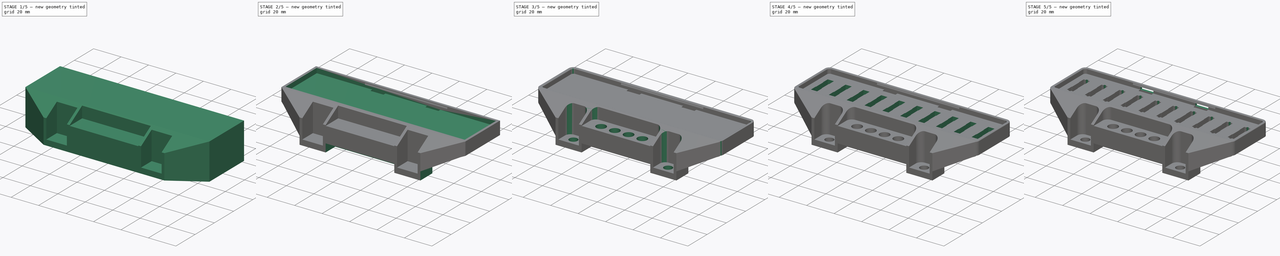
[diagram: build sequence overview — one tinted view per stage of 5, left to right]
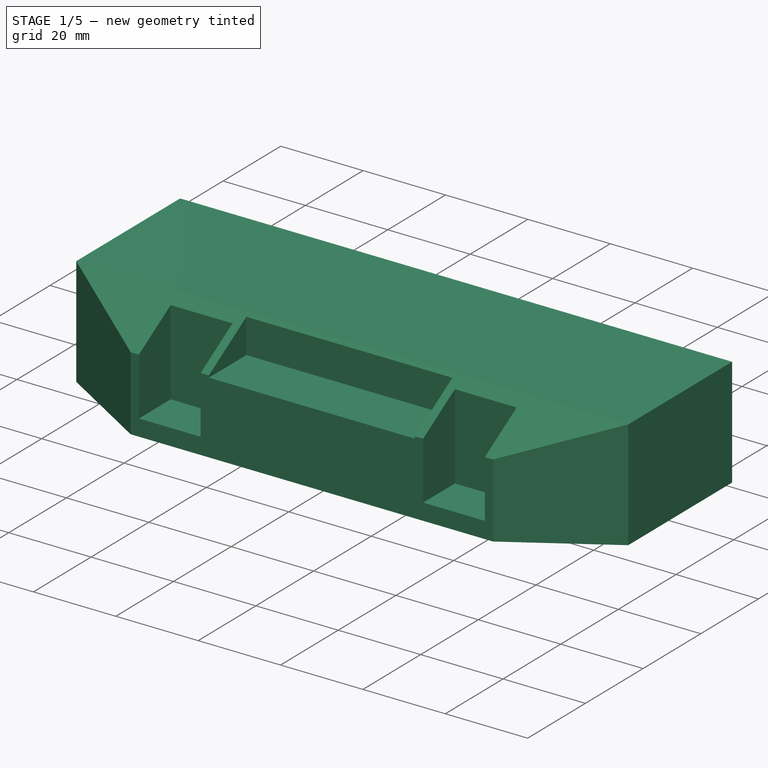
[diagram: stage 1 of 5 — iso view after this stage's code; geometry added in this stage tinted green]
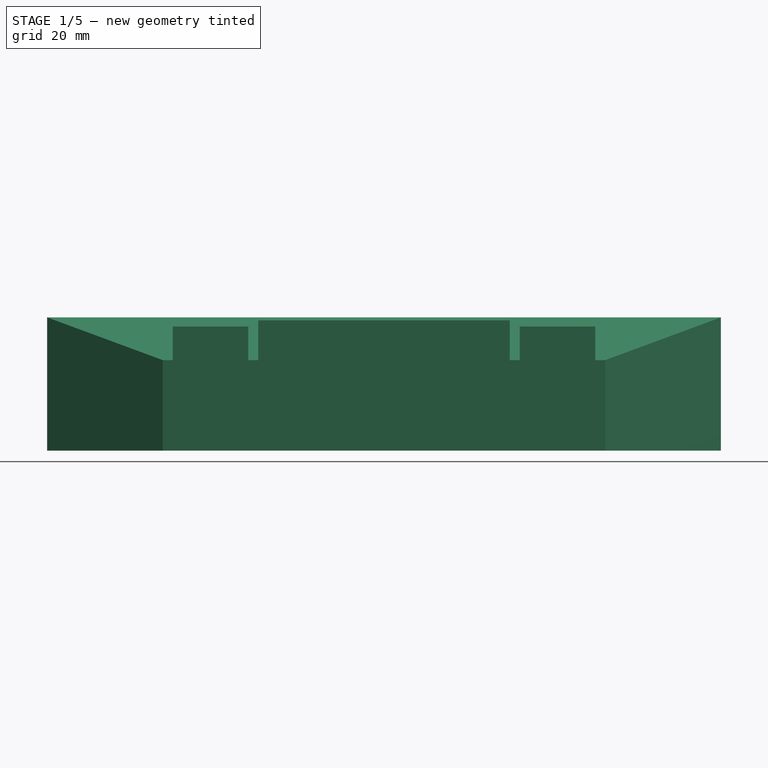
[diagram: stage 1 of 5 — front view after this stage's code; geometry added in this stage tinted green]
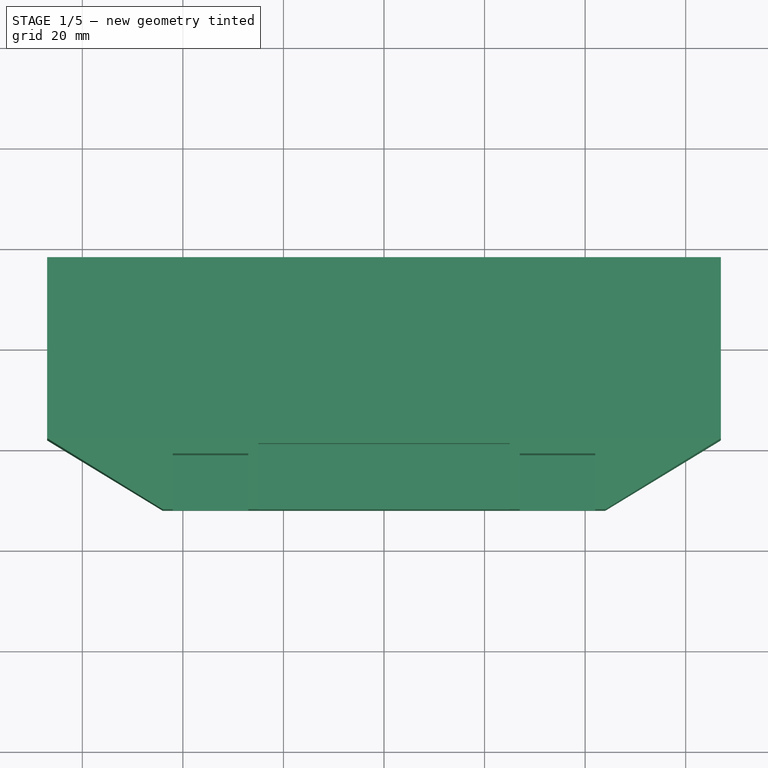
[diagram: stage 1 of 5 — top view after this stage's code; geometry added in this stage tinted green]
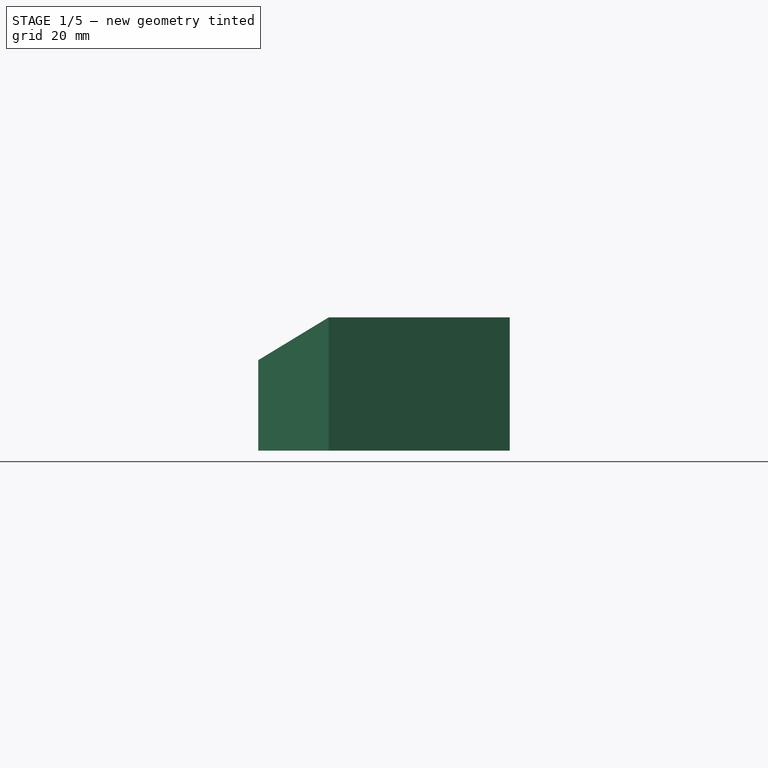
[diagram: stage 1 of 5 — right view after this stage's code; geometry added in this stage tinted green]
FCSTD DOCUMENT  (FreeCAD 1.0R39109 (Git))
Label: FuseBlockWithCutouts
License: All rights reserved
LicenseURL: http://en.wikipedia.org/wiki/All_rights_reserved
objects: Sketcher::SketchObject×19, PartDesign::Pocket×15, PartDesign::Fillet×5, PartDesign::Pad×4, PartDesign::Body×2, Part::Fuse×1
note: 113 computed .brp shape members not serialized (recipe doc carries the construction recipe); baked Part::Feature solids carry a one-line shape summary decoded from their .brp

FEATURE [Sketcher::SketchObject] Sketch  label="FullOutline"
  ArcFitTolerance = 0
  FullyConstrained = true
  MakeInternals = false
  MapMode = 5
  sketch-geometry (6):
    g0: LineSegment StartX=-67 StartY=18 StartZ=0 EndX=-67 EndY=-18 EndZ=0
    g1: LineSegment StartX=67 StartY=-18 StartZ=0 EndX=67 EndY=18 EndZ=0
    g2: LineSegment StartX=67 StartY=18 StartZ=0 EndX=-67 EndY=18 EndZ=0
    g3: LineSegment StartX=-44 StartY=-32 StartZ=0 EndX=44 EndY=-32 EndZ=0
    g4: LineSegment StartX=-44 StartY=-32 StartZ=0 EndX=-67 EndY=-18 EndZ=0
    g5: LineSegment StartX=44 StartY=-32 StartZ=0 EndX=67 EndY=-18 EndZ=0
  constraints (16):
    c: Coincident(g1,g2)
    c: Coincident(g2,g0)
    c: Vertical(g0)
    c: Vertical(g1)
    c: Horizontal(g2)
    c: Symmetric(g0,g1,g-1)
    c: DistanceX(g2,g2) = 134
    c: DistanceY(g0,g0) = 36
    c: DistanceX(g3,g3) = 88
    c: Symmetric(g3,g3,g-2)
    c: DistanceY(g3,g0) = 50
    c: Coincident(g4,g3)
    c: Coincident(g4,g0)
    c: Coincident(g5,g3)
    c: Coincident(g5,g1)
    c: Equal(g0,g1)
FEATURE [PartDesign::Pad] Pad  label="EntireOutline"
  Direction = (0,0,1)
  Length = 26.5
  Length2 = 10
  Profile = -> Sketch
  ReferenceAxis = -> Sketch [N_Axis]
  Suppressed = false
  Type = 0
FEATURE [Sketcher::SketchObject] Sketch001  label="MountPocket"
  ArcFitTolerance = 0
  ExternalGeometry = -> [Pad]
  FullyConstrained = true
  MakeInternals = false
  MapMode = 5
  Placement = pos=(0,0,26.5) rot=(0,0,1;0rad)
  sketch-geometry (8):
    g0: LineSegment StartX=-42 StartY=-32 StartZ=0 EndX=-27 EndY=-32 EndZ=0
    g1: LineSegment StartX=-27 StartY=-32 StartZ=0 EndX=-27 EndY=-21 EndZ=0
    g2: LineSegment StartX=-27 StartY=-21 StartZ=0 EndX=-42 EndY=-21 EndZ=0
    g3: LineSegment StartX=-42 StartY=-21 StartZ=0 EndX=-42 EndY=-32 EndZ=0
    g4: LineSegment StartX=42 StartY=-32 StartZ=0 EndX=42 EndY=-21 EndZ=0
    g5: LineSegment StartX=42 StartY=-21 StartZ=0 EndX=27 EndY=-21 EndZ=0
    g6: LineSegment StartX=27 StartY=-21 StartZ=0 EndX=27 EndY=-32 EndZ=0
    g7: LineSegment StartX=27 StartY=-32 StartZ=0 EndX=42 EndY=-32 EndZ=0
  constraints (24):
    c: Coincident(g0,g1)
    c: Coincident(g1,g2)
    c: Coincident(g2,g3)
    c: Coincident(g3,g0)
    c: Horizontal(g0)
    c: Horizontal(g2)
    c: Vertical(g1)
    c: Vertical(g3)
    c: PointOnObject(g0,g-3)
    c: DistanceX(g-3,g0) = 2
    c: DistanceX(g0,g0) = 15
    c: DistanceY(g0,g2) = 11
    c: Coincident(g4,g5)
    c: Coincident(g5,g6)
    c: Coincident(g6,g7)
    c: Coincident(g7,g4)
    c: Vertical(g4)
    c: Vertical(g6)
    c: Horizontal(g5)
    c: Horizontal(g7)
    c: PointOnObject(g4,g-3)
    c: DistanceX(g4,g-3) = 2
    c: DistanceX(g6,g4) = 15
    c: DistanceY(g4,g4) = 11
FEATURE [PartDesign::Pocket] Pocket  label="MountPointPocket"
  BaseFeature = -> Pad
  Direction = (0,0,-1)
  Length = 22.5
  Length2 = 5
  Profile = -> Sketch001
  ReferenceAxis = -> Sketch001 [N_Axis]
  Suppressed = false
  Type = 0
FEATURE [Sketcher::SketchObject] Sketch002  label="BottomCenterCutout"
  ArcFitTolerance = 0
  ExternalGeometry = -> [Pocket]
  FullyConstrained = true
  MakeInternals = false
  MapMode = 5
  Placement = pos=(0,0,26.5) rot=(0,0,1;0rad)
  sketch-geometry (4):
    g0: LineSegment StartX=-25 StartY=-32 StartZ=0 EndX=25 EndY=-32 EndZ=0
    g1: LineSegment StartX=25 StartY=-32 StartZ=0 EndX=25 EndY=-19 EndZ=0
    g2: LineSegment StartX=25 StartY=-19 StartZ=0 EndX=-25 EndY=-19 EndZ=0
    g3: LineSegment StartX=-25 StartY=-19 StartZ=0 EndX=-25 EndY=-32 EndZ=0
  constraints (12):
    c: Coincident(g0,g1)
    c: Coincident(g1,g2)
    c: Coincident(g2,g3)
    c: Coincident(g3,g0)
    c: Horizontal(g0)
    c: Horizontal(g2)
    c: Vertical(g1)
    c: Vertical(g3)
    c: PointOnObject(g0,g-3)
    c: DistanceX(g0,g0) = 50
    c: DistanceX(g0,g-1) = 25
    c: DistanceY(g0,g2) = 13
FEATURE [PartDesign::Pocket] Pocket001  label="BottomCenterPocket"
  BaseFeature = -> Pocket
  Direction = (0,0,-1)
  Length = 9
  Length2 = 5
  Profile = -> Sketch002
  ReferenceAxis = -> Sketch002 [N_Axis]
  Suppressed = false
  Type = 0
FEATURE [Sketcher::SketchObject] Sketch003  label="SideAngle"
  ArcFitTolerance = 0
  ExternalGeometry = -> [Pocket001]
  FullyConstrained = true
  MakeInternals = false
  MapMode = 5
  Placement = pos=(67,0,0) rot=(0.57735,0.57735,0.57735;2.0944rad)
  sketch-geometry (3):
    g0: LineSegment StartX=-18 StartY=26.5 StartZ=0 EndX=-32 EndY=18 EndZ=0
    g1: LineSegment StartX=-32 StartY=18 StartZ=0 EndX=-32 EndY=26.5 EndZ=0
    g2: LineSegment StartX=-32 StartY=26.5 StartZ=0 EndX=-18 EndY=26.5 EndZ=0
  constraints (7):
    c: Coincident(g0,g-3)
    c: PointOnObject(g0,g-4)
    c: DistanceY(g-4,g0) = 18
    c: Coincident(g1,g0)
    c: Coincident(g1,g-4)
    c: Coincident(g2,g1)
    c: Coincident(g2,g0)
FEATURE [PartDesign::Pocket] Pocket002  label="SideAnglePocket"
  BaseFeature = -> Pocket001
  Direction = (-1,1e-16,-1e-16)
  Length = 5
  Length2 = 5
  Profile = -> Sketch003
  ReferenceAxis = -> Sketch003 [N_Axis]
  Suppressed = false
  Type = 1
FEATURE [PartDesign::Body] Body
  AllowCompound = false
  Group = -> [Sketch,Pad,Sketch001,Pocket,Sketch002,Pocket001,Sketch003,Pocket002,Sketch004,Pocket003,Sketch005,Pocket004,Sketch006,Pocket005,Sketch007,Pocket006,Sketch008,Pocket007,Sketch009,Pocket008,Fillet,Fillet001,Fillet002,Fillet003,Fillet004,Sketch011,Pocket010,Sketch016,Pocket012,Sketch017,Pocket013,Sketch018,Pad001,Sketch019,Pad002,Sketch020,Pocket014,Sketch021,Pocket015,Sketch022,Pocket016]
  Origin = -> Origin
  Tip = -> Pocket016
FEATURE [Sketcher::SketchObject] Sketch023  label="Lip"
  ArcFitTolerance = 1e-06
  AttachmentSupport = -> [YZ_Plane001]
  FullyConstrained = true
  MakeInternals = false
  MapMode = 5
  Placement = pos=(0,0,0) rot=(0.57735,0.57735,0.57735;2.0944rad)
  sketch-geometry (3):
    g0: LineSegment StartX=16.25 StartY=26 StartZ=0 EndX=15.85 EndY=25 EndZ=0
    g1: LineSegment StartX=15.85 StartY=25 StartZ=0 EndX=16.25 EndY=25 EndZ=0
    g2: LineSegment StartX=16.25 StartY=25 StartZ=0 EndX=16.25 EndY=26 EndZ=0
  constraints (9):
    c: Coincident(g1,g0)
    c: Horizontal(g1)
    c: Coincident(g2,g1)
    c: Coincident(g2,g0)
    c: Vertical(g2)
    c: DistanceX(g1,g1) = 0.4
    c: DistanceX(g-1,g1) = 16.25
    c: DistanceY(g-1,g1) = 25
    c: DistanceY(g2,g2) = 1
FEATURE [PartDesign::Pad] Pad003
  Direction = (1,0,0)
  Length = 60
  Length2 = 10
  Midplane = true
  Placement = pos=(0,0,0) rot=(1,1,1;2.0944rad)
  Profile = -> Sketch023
  ReferenceAxis = -> Sketch023 [N_Axis]
  Refine = true
  Suppressed = false
  Type = 0
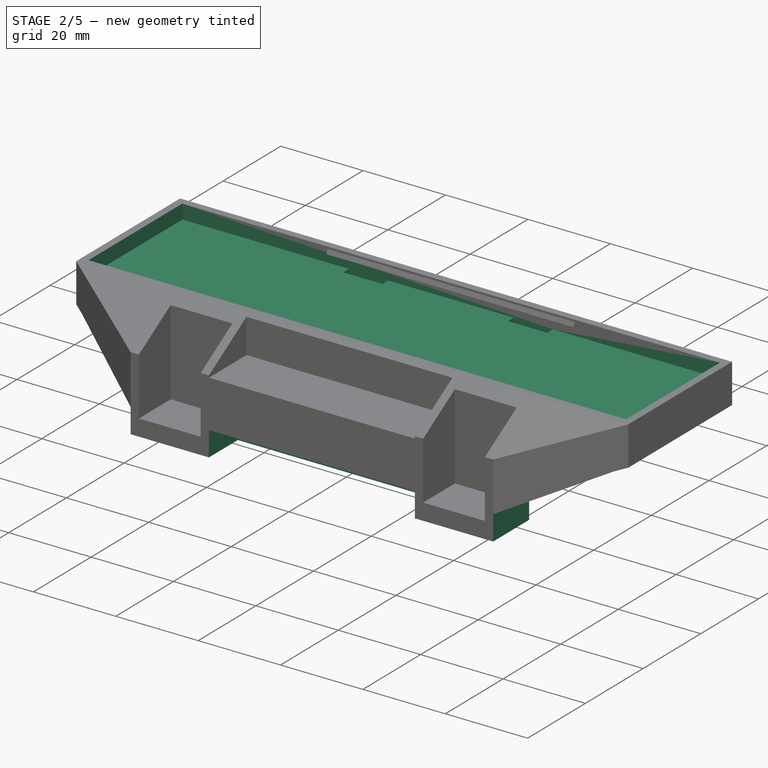
[diagram: stage 2 of 5 — iso view after this stage's code; geometry added in this stage tinted green]
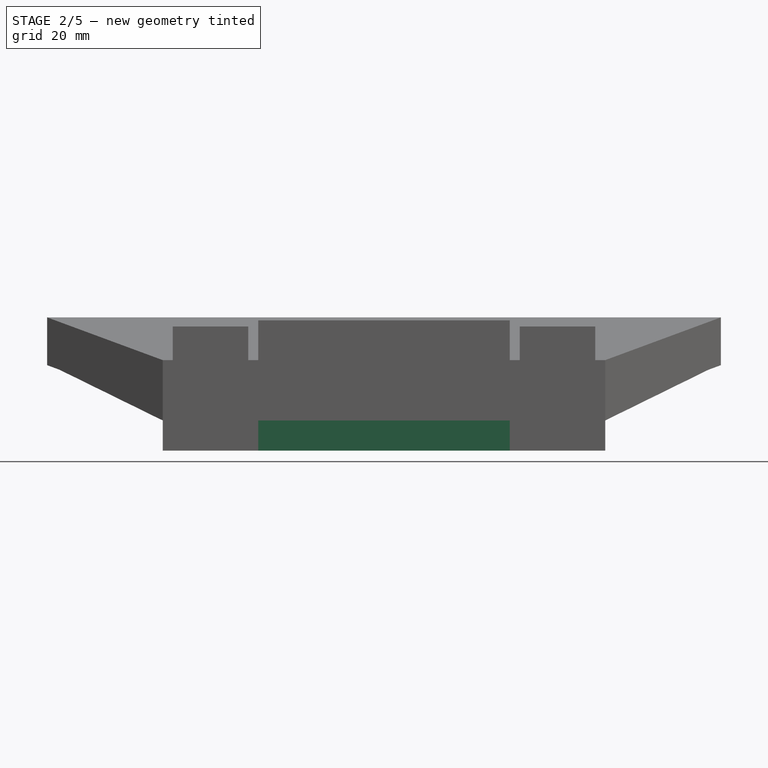
[diagram: stage 2 of 5 — front view after this stage's code; geometry added in this stage tinted green]
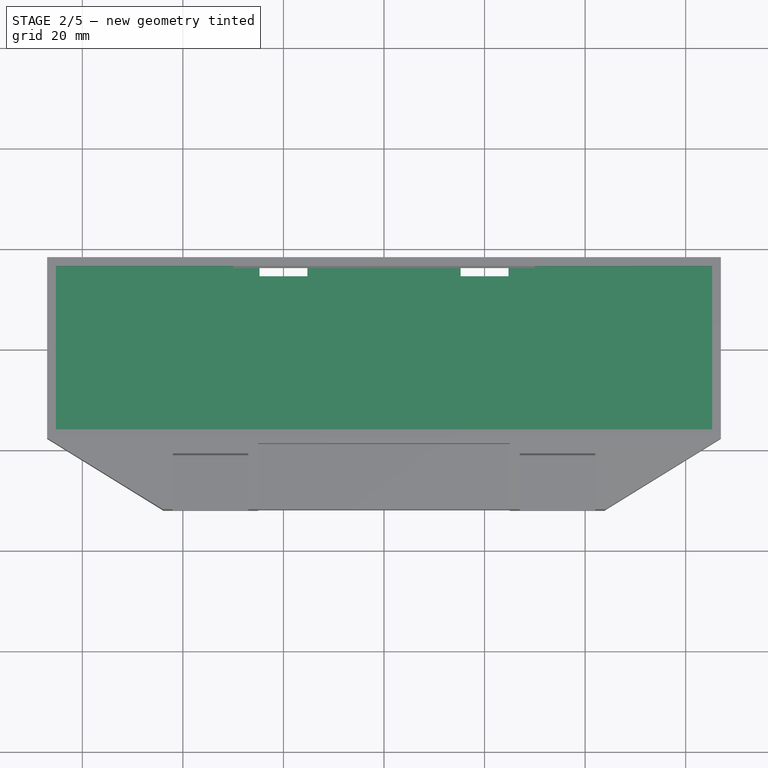
[diagram: stage 2 of 5 — top view after this stage's code; geometry added in this stage tinted green]
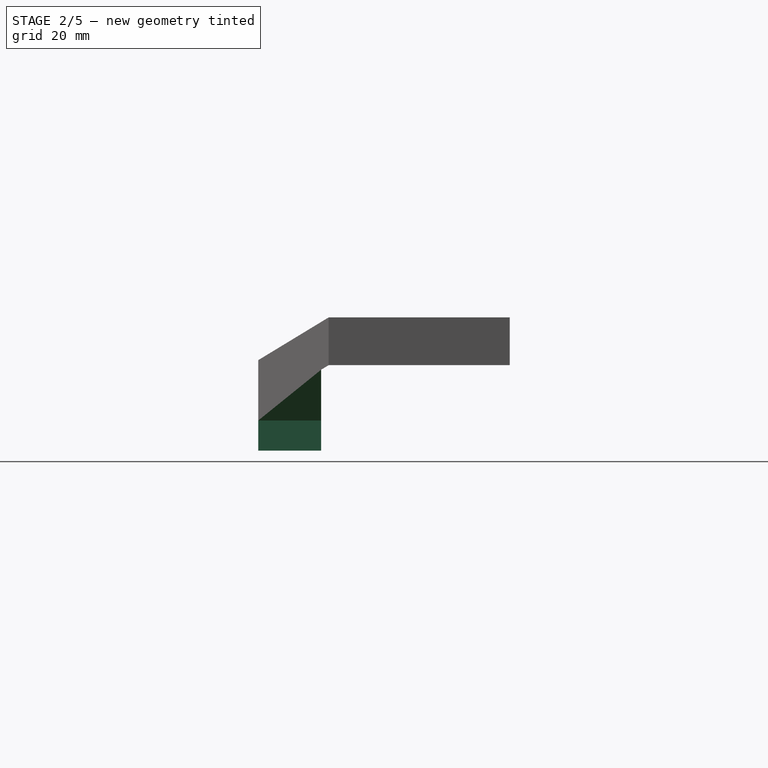
[diagram: stage 2 of 5 — right view after this stage's code; geometry added in this stage tinted green]
FEATURE [Sketcher::SketchObject] Sketch004  label="FirstUndersideRemoval"
  ArcFitTolerance = 0
  ExternalGeometry = -> [Pocket002]
  FullyConstrained = true
  MakeInternals = false
  MapMode = 5
  Placement = pos=(67,0,0) rot=(0.57735,0.57735,0.57735;2.0944rad)
  sketch-geometry (5):
    g0: LineSegment StartX=18 StartY=17 StartZ=0 EndX=-18 EndY=17 EndZ=0
    g1: LineSegment StartX=-19.5 StartY=0 StartZ=0 EndX=18 EndY=0 EndZ=0
    g2: LineSegment StartX=18 StartY=0 StartZ=0 EndX=18 EndY=17 EndZ=0
    g3: LineSegment StartX=-19.5 StartY=0 StartZ=0 EndX=-19.5 EndY=16.0893 EndZ=0
    g4: LineSegment StartX=-19.5 StartY=16.0893 StartZ=0 EndX=-18 EndY=17 EndZ=0
  constraints (14):
    c: PointOnObject(g0,g-6)
    c: PointOnObject(g0,g-5)
    c: Horizontal(g0)
    c: PointOnObject(g1,g-1)
    c: Coincident(g1,g-6)
    c: Coincident(g2,g1)
    c: Coincident(g2,g0)
    c: Coincident(g3,g1)
    c: Vertical(g3)
    c: Coincident(g4,g3)
    c: Coincident(g4,g0)
    c: DistanceY(g0,g-6) = 9.5
    c: DistanceX(g-4,g1) = 12.5
    c: Parallel(g-7,g4)
FEATURE [PartDesign::Pocket] Pocket003  label="PrimaryUndersidePocket"
  BaseFeature = -> Pocket002
  Direction = (-1,1e-16,-1e-16)
  Length = 5
  Length2 = 5
  Profile = -> Sketch004
  ReferenceAxis = -> Sketch004 [N_Axis]
  Suppressed = false
  Type = 1
FEATURE [Sketcher::SketchObject] Sketch005  label="SecondUndersideRemoval"
  ArcFitTolerance = 0
  ExternalGeometry = -> [Pocket003]
  FullyConstrained = true
  MakeInternals = false
  MapMode = 5
  Placement = pos=(0,-32,0) rot=(1,0,0;1.5708rad)
  sketch-geometry (8):
    g0: LineSegment StartX=-44 StartY=0 StartZ=0 EndX=-44 EndY=6 EndZ=0
    g1: LineSegment StartX=44 StartY=0 StartZ=0 EndX=44 EndY=6 EndZ=0
    g2: LineSegment StartX=44 StartY=6 StartZ=0 EndX=64.5357 EndY=16.0893 EndZ=0
    g3: LineSegment StartX=64.5357 StartY=16.0893 StartZ=0 EndX=64.5357 EndY=3.6e-15 EndZ=0
    g4: LineSegment StartX=44 StartY=0 StartZ=0 EndX=64.5357 EndY=3.6e-15 EndZ=0
    g5: LineSegment StartX=-44 StartY=6 StartZ=0 EndX=-64.5357 EndY=16.0893 EndZ=0
    g6: LineSegment StartX=-64.5357 StartY=16.0893 StartZ=0 EndX=-64.5357 EndY=0 EndZ=0
    g7: LineSegment StartX=-64.5357 StartY=0 StartZ=0 EndX=-44 EndY=0 EndZ=0
  constraints (18):
    c: Coincident(g0,g-3)
    c: PointOnObject(g0,g-3)
    c: DistanceY(g0,g0) = 6
    c: Coincident(g1,g-4)
    c: PointOnObject(g1,g-4)
    c: DistanceY(g1,g1) = 6
    c: Coincident(g2,g1)
    c: Coincident(g2,g-9)
    c: Coincident(g3,g2)
    c: Coincident(g3,g-9)
    c: Coincident(g4,g1)
    c: Coincident(g4,g3)
    c: Coincident(g5,g0)
    c: Coincident(g5,g-8)
    c: Coincident(g6,g5)
    c: Coincident(g6,g-8)
    c: Coincident(g7,g6)
    c: Coincident(g7,g0)
FEATURE [PartDesign::Pocket] Pocket004  label="SecondaryUndersidePocket"
  BaseFeature = -> Pocket003
  Direction = (0,1,-2e-16)
  Length = 5
  Length2 = 5
  Profile = -> Sketch005
  ReferenceAxis = -> Sketch005 [N_Axis]
  Suppressed = false
  Type = 1
FEATURE [Sketcher::SketchObject] Sketch006  label="TopCountersink"
  ArcFitTolerance = 0
  FullyConstrained = true
  MakeInternals = false
  MapMode = 5
  Placement = pos=(0,0,26.5) rot=(0,0,1;0rad)
  sketch-geometry (4):
    g0: LineSegment StartX=-65.25 StartY=16.25 StartZ=0 EndX=-65.25 EndY=-16.25 EndZ=0
    g1: LineSegment StartX=-65.25 StartY=-16.25 StartZ=0 EndX=65.25 EndY=-16.25 EndZ=0
    g2: LineSegment StartX=65.25 StartY=-16.25 StartZ=0 EndX=65.25 EndY=16.25 EndZ=0
    g3: LineSegment StartX=65.25 StartY=16.25 StartZ=0 EndX=-65.25 EndY=16.25 EndZ=0
  constraints (11):
    c: Coincident(g0,g1)
    c: Coincident(g1,g2)
    c: Coincident(g2,g3)
    c: Coincident(g3,g0)
    c: Vertical(g0)
    c: Vertical(g2)
    c: Horizontal(g1)
    c: Horizontal(g3)
    c: Symmetric(g0,g1,g-1)
    c: DistanceY(g0,g0) = 32.5
    c: DistanceX(g0,g2) = 130.5
FEATURE [PartDesign::Pocket] Pocket005  label="TopPocket"
  BaseFeature = -> Pocket004
  Direction = (0,0,-1)
  Length = 3.5
  Length2 = 5
  Profile = -> Sketch006
  ReferenceAxis = -> Sketch006 [N_Axis]
  Suppressed = false
  Type = 0
FEATURE [Sketcher::SketchObject] Sketch007  label="CenterBottomCutout"
  ArcFitTolerance = 0
  FullyConstrained = true
  MakeInternals = false
  MapMode = 5
  Placement = pos=(0,-32,0) rot=(1,0,0;1.5708rad)
  sketch-geometry (4):
    g0: LineSegment StartX=-25 StartY=0 StartZ=0 EndX=25 EndY=0 EndZ=0
    g1: LineSegment StartX=25 StartY=0 StartZ=0 EndX=25 EndY=6 EndZ=0
    g2: LineSegment StartX=25 StartY=6 StartZ=0 EndX=-25 EndY=6 EndZ=0
    g3: LineSegment StartX=-25 StartY=6 StartZ=0 EndX=-25 EndY=0 EndZ=0
  constraints (11):
    c: Coincident(g0,g1)
    c: Coincident(g1,g2)
    c: Coincident(g2,g3)
    c: Coincident(g3,g0)
    c: Horizontal(g0)
    c: Horizontal(g2)
    c: Vertical(g1)
    c: Vertical(g3)
    c: Symmetric(g0,g0,g-1)
    c: DistanceX(g0,g0) = 50
    c: DistanceY(g0,g2) = 6
FEATURE [PartDesign::Pocket] Pocket006  label="CenterBottomPocket"
  BaseFeature = -> Pocket005
  Direction = (0,1,-2e-16)
  Length = 10
  Length2 = 5
  Profile = -> Sketch007
  ReferenceAxis = -> Sketch007 [N_Axis]
  Suppressed = false
  Type = 0
FEATURE [Sketcher::SketchObject] Sketch008  label="LidHole"
  ArcFitTolerance = 0
  ExternalGeometry = -> [Pocket006]
  FullyConstrained = true
  MakeInternals = false
  MapMode = 5
  Placement = pos=(0,0,23) rot=(0,0,1;0rad)
  sketch-geometry (8):
    g0: LineSegment StartX=-24.75 StartY=16.25 StartZ=0 EndX=-24.75 EndY=14.25 EndZ=0
    g1: LineSegment StartX=-24.75 StartY=14.25 StartZ=0 EndX=-15.25 EndY=14.25 EndZ=0
    g2: LineSegment StartX=-15.25 StartY=14.25 StartZ=0 EndX=-15.25 EndY=16.25 EndZ=0
    g3: LineSegment StartX=-15.25 StartY=16.25 StartZ=0 EndX=-24.75 EndY=16.25 EndZ=0
    g4: LineSegment StartX=15.25 StartY=16.25 StartZ=0 EndX=15.25 EndY=14.25 EndZ=0
    g5: LineSegment StartX=15.25 StartY=14.25 StartZ=0 EndX=24.75 EndY=14.25 EndZ=0
    g6: LineSegment StartX=24.75 StartY=14.25 StartZ=0 EndX=24.75 EndY=16.25 EndZ=0
    g7: LineSegment StartX=24.75 StartY=16.25 StartZ=0 EndX=15.25 EndY=16.25 EndZ=0
  constraints (24):
    c: Coincident(g0,g1)
    c: Coincident(g1,g2)
    c: Coincident(g2,g3)
    c: Coincident(g3,g0)
    c: Vertical(g0)
    c: Vertical(g2)
    c: Horizontal(g1)
    c: Horizontal(g3)
    c: PointOnObject(g0,g-3)
    c: DistanceX(g-3,g0) = 40.5
    c: DistanceX(g0,g1) = 9.5
    c: DistanceY(g0,g0) = 2
    c: Coincident(g4,g5)
    c: Coincident(g5,g6)
    c: Coincident(g6,g7)
    c: Coincident(g7,g4)
    c: Vertical(g4)
    c: Vertical(g6)
    c: Horizontal(g5)
    c: Horizontal(g7)
    c: PointOnObject(g4,g-3)
    c: DistanceY(g5,g6) = 2
    c: DistanceX(g6,g-3) = 40.5
    c: DistanceX(g4,g6) = 9.5
FEATURE [PartDesign::Pocket] Pocket007  label="LidPocket"
  BaseFeature = -> Pocket006
  Direction = (0,0,-1)
  Length = 5
  Length2 = 5
  Profile = -> Sketch008
  ReferenceAxis = -> Sketch008 [N_Axis]
  Suppressed = false
  Type = 1
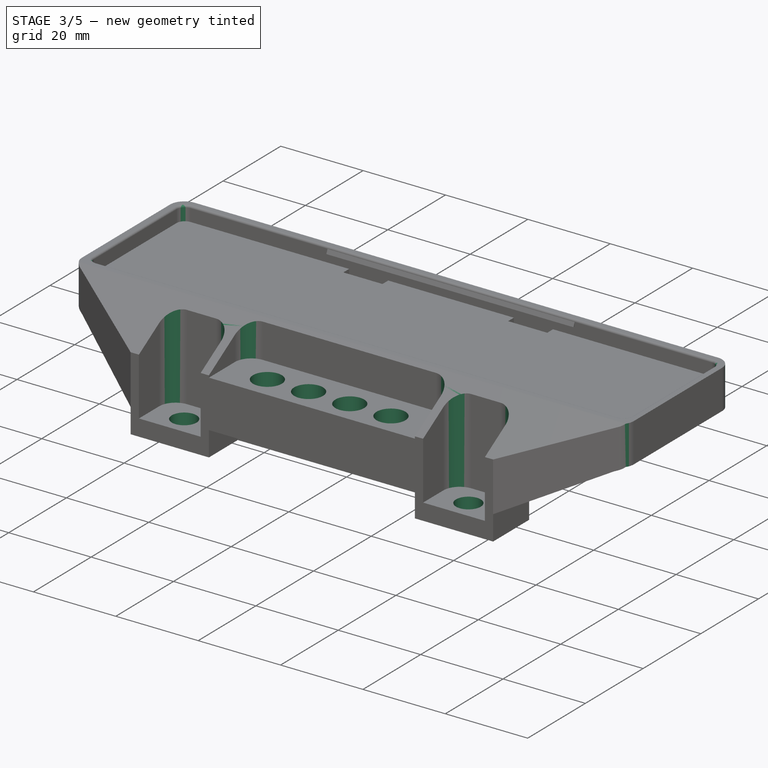
[diagram: stage 3 of 5 — iso view after this stage's code; geometry added in this stage tinted green]
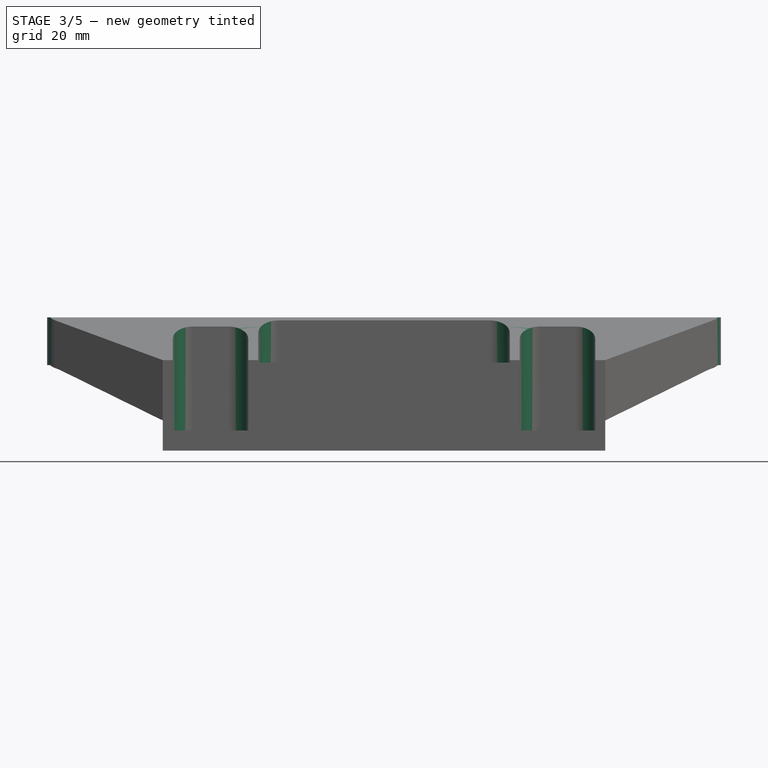
[diagram: stage 3 of 5 — front view after this stage's code; geometry added in this stage tinted green]
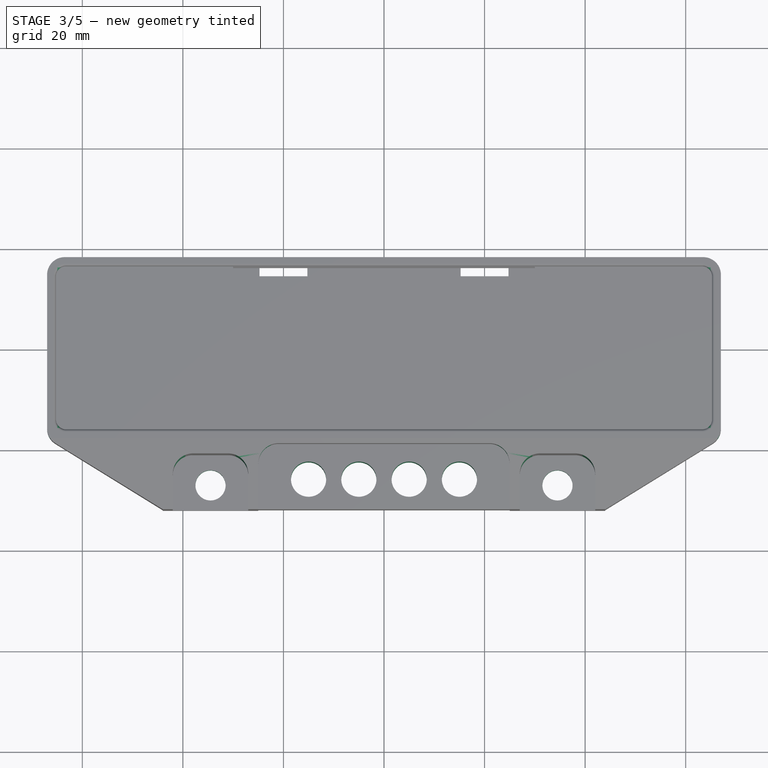
[diagram: stage 3 of 5 — top view after this stage's code; geometry added in this stage tinted green]
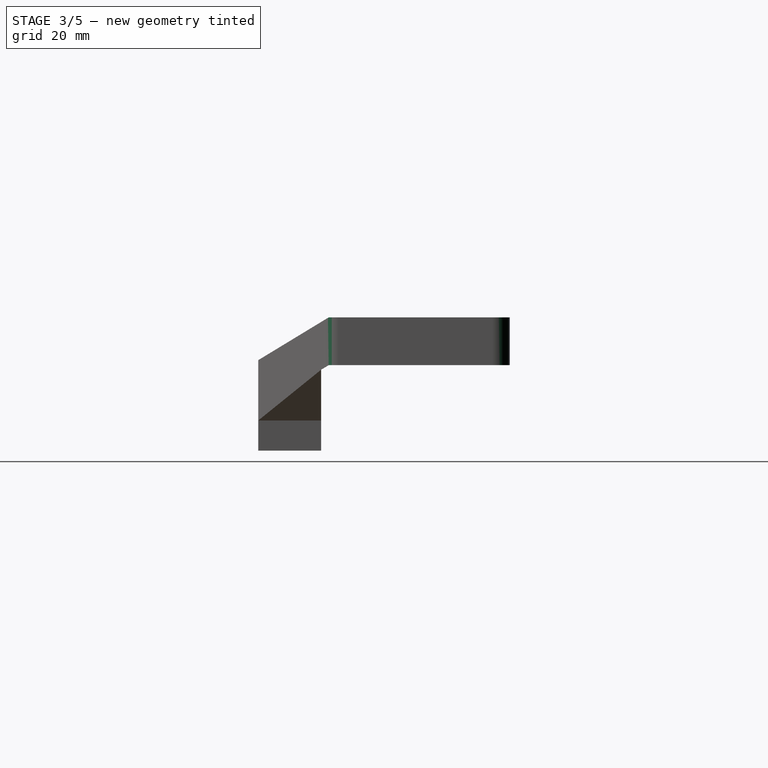
[diagram: stage 3 of 5 — right view after this stage's code; geometry added in this stage tinted green]
FEATURE [Sketcher::SketchObject] Sketch009  label="Holes"
  ArcFitTolerance = 0
  ExternalGeometry = -> [Pocket007]
  FullyConstrained = true
  MakeInternals = false
  MapMode = 5
  Placement = pos=(0,0,17.5) rot=(0,0,1;0rad)
  sketch-geometry (6):
    g0: Circle CenterX=-15 CenterY=-26 CenterZ=0 NormalX=0 NormalY=0 NormalZ=1 AngleXU=0 Radius=3.5
    g1: Circle CenterX=-5 CenterY=-26 CenterZ=0 NormalX=0 NormalY=0 NormalZ=1 AngleXU=0 Radius=3.5
    g2: Circle CenterX=15 CenterY=-26 CenterZ=0 NormalX=0 NormalY=0 NormalZ=1 AngleXU=0 Radius=3.5
    g3: Circle CenterX=5 CenterY=-26 CenterZ=0 NormalX=0 NormalY=0 NormalZ=1 AngleXU=0 Radius=3.5
    g4: Circle CenterX=-34.5 CenterY=-27 CenterZ=0 NormalX=0 NormalY=0 NormalZ=1 AngleXU=0 Radius=3
    g5: Circle CenterX=34.5 CenterY=-27 CenterZ=0 NormalX=0 NormalY=0 NormalZ=1 AngleXU=0 Radius=3
  constraints (16):
    c: Diameter(g2) = 7
    c: Equal(g2,g3)
    c: Equal(g3,g1)
    c: Equal(g1,g0)
    c: Horizontal(g2,g3)
    c: Horizontal(g1,g0)
    c: DistanceX(g0,g1) = 10
    c: DistanceX(g3,g2) = 10
    c: DistanceX(g1,g3) = 10
    c: Symmetric(g1,g3,g-2)
    c: DistanceY(g-3,g0) = 6
    c: Diameter(g4) = 6
    c: Equal(g4,g5)
    c: Symmetric(g4,g5,g-2)
    c: DistanceY(g-3,g4) = 5
    c: DistanceX(g4,g5) = 69
FEATURE [PartDesign::Pocket] Pocket008  label="HolesPocket"
  BaseFeature = -> Pocket007
  Direction = (0,0,-1)
  Length = 5
  Length2 = 5
  Profile = -> Sketch009
  ReferenceAxis = -> Sketch009 [N_Axis]
  Suppressed = false
  Type = 1
FEATURE [PartDesign::Fillet] Fillet  label="MountHoleFillet"
  Base = -> Pocket008 [Edge72,Edge77,Edge57,Edge62,Edge71,Edge63]
  BaseFeature = -> Pocket008
  Radius = 4
  SupportTransform = false
  Suppressed = false
  UseAllEdges = false
FEATURE [PartDesign::Fillet] Fillet001  label="TopInternalVerticalFillet"
  Base = -> Fillet [Edge119,Edge121,Edge117,Edge116]
  BaseFeature = -> Fillet
  Radius = 2
  SupportTransform = false
  Suppressed = false
  UseAllEdges = false
FEATURE [PartDesign::Fillet] Fillet002  label="TopInternalHorizontalFillet"
  Base = -> Fillet001 [Edge5]
  BaseFeature = -> Fillet001
  Radius = 0.5
  SupportTransform = false
  Suppressed = false
  UseAllEdges = false
FEATURE [PartDesign::Fillet] Fillet003  label="VerticalOutsideFillet"
  Base = -> Fillet002 [Edge30,Edge31,Edge56,Edge33]
  BaseFeature = -> Fillet002
  Radius = 3.5
  SupportTransform = false
  Suppressed = false
  UseAllEdges = false
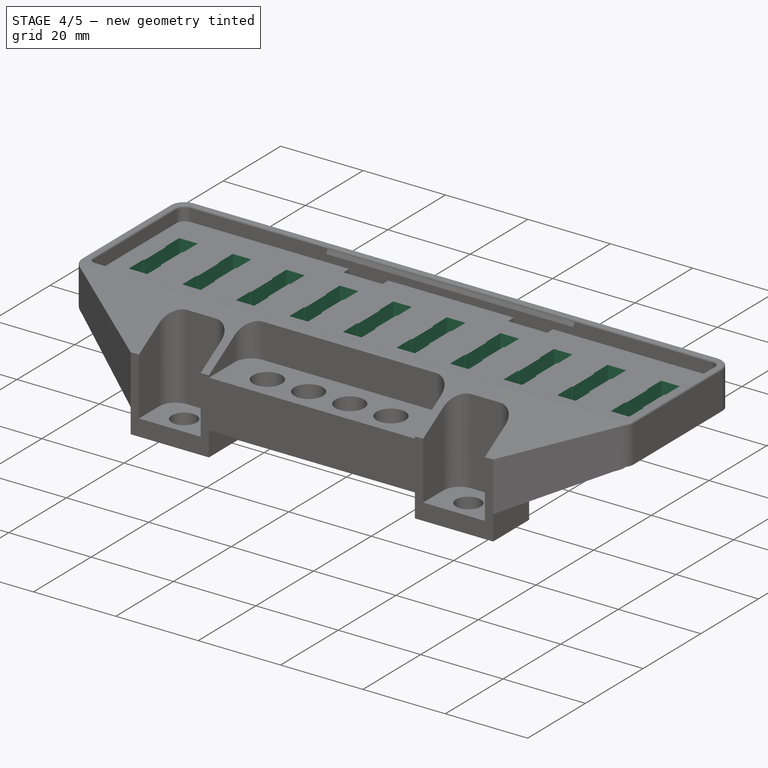
[diagram: stage 4 of 5 — iso view after this stage's code; geometry added in this stage tinted green]
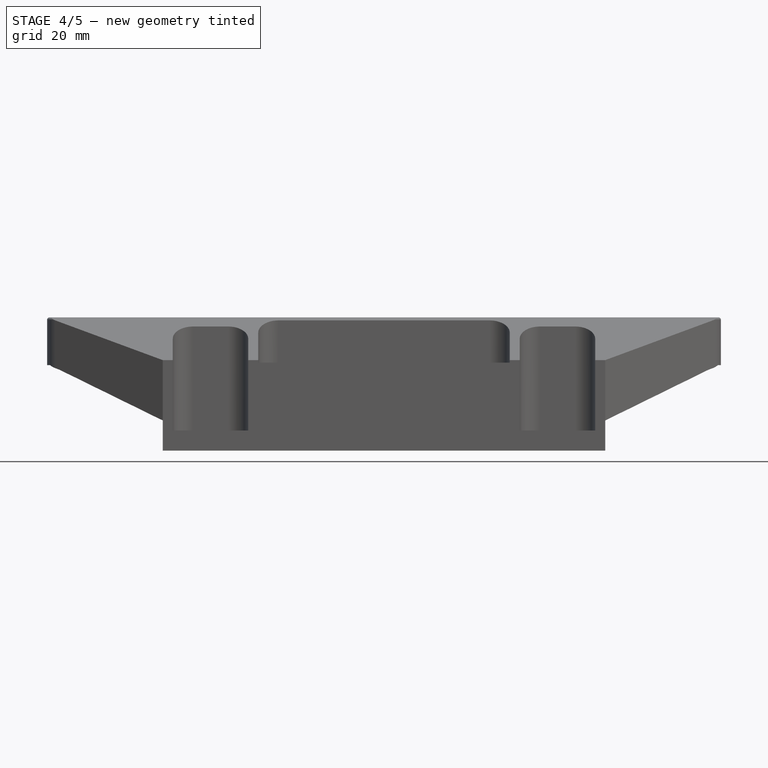
[diagram: stage 4 of 5 — front view after this stage's code; geometry added in this stage tinted green]
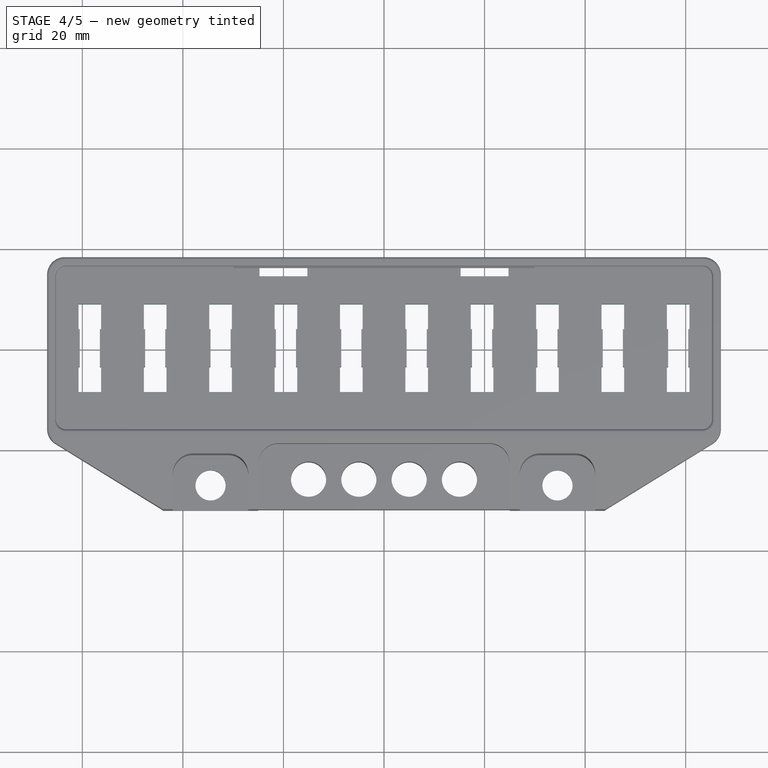
[diagram: stage 4 of 5 — top view after this stage's code; geometry added in this stage tinted green]
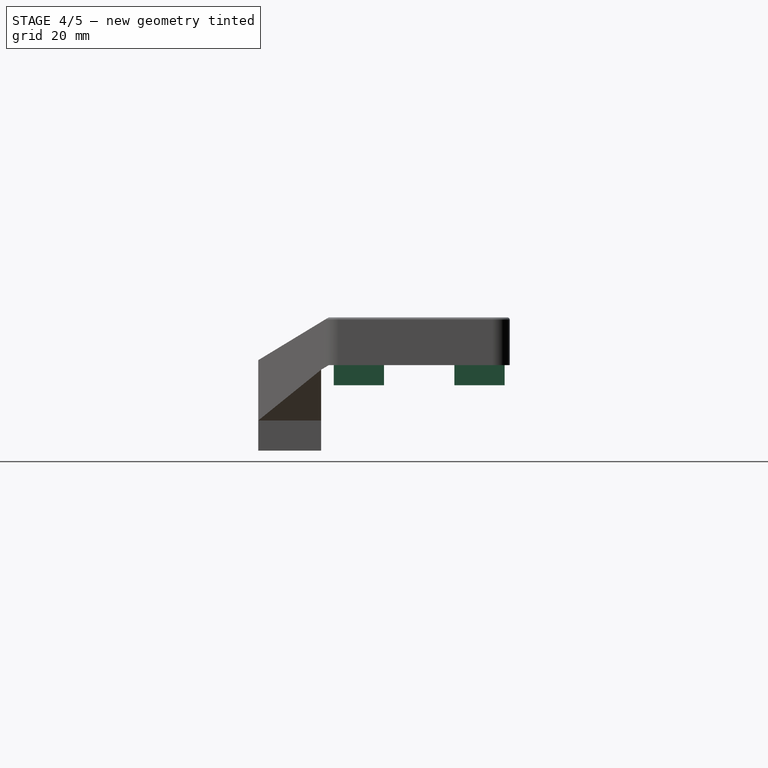
[diagram: stage 4 of 5 — right view after this stage's code; geometry added in this stage tinted green]
FEATURE [PartDesign::Fillet] Fillet004  label="HorizontalOuterEdgeFillet"
  Base = -> Fillet003 [Edge1,Edge4,Edge8]
  BaseFeature = -> Fillet003
  Radius = 0.5
  SupportTransform = false
  Suppressed = false
  UseAllEdges = false
FEATURE [Sketcher::SketchObject] Sketch011
  ArcFitTolerance = 0
  FullyConstrained = false
  MakeInternals = false
  MapMode = 5
  Placement = pos=(4.12581,0,0) rot=(0.57735,0.57735,0.57735;2.0944rad)
  sketch-geometry (5):
    g0: LineSegment StartX=-21 StartY=-8.71962 StartZ=0 EndX=-21 EndY=8.71962 EndZ=0
    g1: LineSegment StartX=-21 StartY=8.71962 StartZ=0 EndX=21 EndY=8.71962 EndZ=0
    g2: LineSegment StartX=21 StartY=8.71962 StartZ=0 EndX=21 EndY=-8.71962 EndZ=0
    g3: LineSegment StartX=21 StartY=-8.71962 StartZ=0 EndX=-21 EndY=-8.71962 EndZ=0
    g4: GeomPoint [constr] X=0 Y=0 Z=0
  constraints (10):
    c: Coincident(g0,g1)
    c: Coincident(g1,g2)
    c: Coincident(g2,g3)
    c: Coincident(g3,g0)
    c: Horizontal(g1)
    c: Horizontal(g3)
    c: Vertical(g0)
    c: Vertical(g2)
    c: Symmetric(g1,g0,g4)
    c: Coincident(g4,g-1)
FEATURE [PartDesign::Pocket] Pocket010  label="ThinBack"
  BaseFeature = -> Fillet004
  Direction = (-1,1e-16,-1e-16)
  Length = 2
  Length2 = 5
  Profile = -> Sketch011
  ReferenceAxis = -> Sketch011 [N_Axis]
  Suppressed = false
  Type = 0
FEATURE [Sketcher::SketchObject] Sketch016
  ArcFitTolerance = 0
  AttachmentSupport = -> [Pocket010]
  FullyConstrained = false
  MakeInternals = false
  MapMode = 5
  Placement = pos=(-1.9e-15,1.9e-15,17) rot=(1,0,0;3.14159rad)
  sketch-geometry (100):
    g0: LineSegment StartX=-56.25 StartY=-8.75 StartZ=0 EndX=-56.25 EndY=-3.75 EndZ=0
    g1: LineSegment StartX=-56.25 StartY=-3.75 StartZ=0 EndX=-60.75 EndY=-3.75 EndZ=0
    g2: LineSegment StartX=-60.75 StartY=-3.75 StartZ=0 EndX=-60.75 EndY=-8.75 EndZ=0
    g3: LineSegment StartX=-60.75 StartY=-8.75 StartZ=0 EndX=-56.25 EndY=-8.75 EndZ=0
    g4: GeomPoint [constr] X=-58.5 Y=-6.25 Z=0
    g5: LineSegment StartX=-43.25 StartY=-8.75 StartZ=0 EndX=-43.25 EndY=-3.75 EndZ=0
    g6: LineSegment StartX=-43.25 StartY=-3.75 StartZ=0 EndX=-47.75 EndY=-3.75 EndZ=0
    g7: LineSegment StartX=-47.75 StartY=-3.75 StartZ=0 EndX=-47.75 EndY=-8.75 EndZ=0
    g8: LineSegment StartX=-47.75 StartY=-8.75 StartZ=0 EndX=-43.25 EndY=-8.75 EndZ=0
    g9: GeomPoint [constr] X=-45.5 Y=-6.25 Z=0
    g10: LineSegment StartX=-30.25 StartY=-8.75 StartZ=0 EndX=-30.25 EndY=-3.75 EndZ=0
    g11: LineSegment StartX=-30.25 StartY=-3.75 StartZ=0 EndX=-34.75 EndY=-3.75 EndZ=0
    g12: LineSegment StartX=-34.75 StartY=-3.75 StartZ=0 EndX=-34.75 EndY=-8.75 EndZ=0
    g13: LineSegment StartX=-34.75 StartY=-8.75 StartZ=0 EndX=-30.25 EndY=-8.75 EndZ=0
    g14: GeomPoint [constr] X=-32.5 Y=-6.25 Z=0
    g15: LineSegment StartX=-17.25 StartY=-8.75 StartZ=0 EndX=-17.25 EndY=-3.75 EndZ=0
    g16: LineSegment StartX=-17.25 StartY=-3.75 StartZ=0 EndX=-21.75 EndY=-3.75 EndZ=0
    g17: LineSegment StartX=-21.75 StartY=-3.75 StartZ=0 EndX=-21.75 EndY=-8.75 EndZ=0
    g18: LineSegment StartX=-21.75 StartY=-8.75 StartZ=0 EndX=-17.25 EndY=-8.75 EndZ=0
    g19: GeomPoint [constr] X=-19.5 Y=-6.25 Z=0
    g20: LineSegment StartX=-4.25 StartY=-8.75 StartZ=0 EndX=-4.25 EndY=-3.75 EndZ=0
    g21: LineSegment StartX=-4.25 StartY=-3.75 StartZ=0 EndX=-8.75 EndY=-3.75 EndZ=0
    g22: LineSegment StartX=-8.75 StartY=-3.75 StartZ=0 EndX=-8.75 EndY=-8.75 EndZ=0
    g23: LineSegment StartX=-8.75 StartY=-8.75 StartZ=0 EndX=-4.25 EndY=-8.75 EndZ=0
    g24: GeomPoint [constr] X=-6.5 Y=-6.25 Z=0
    g25: LineSegment StartX=8.75 StartY=-8.75 StartZ=0 EndX=8.75 EndY=-3.75 EndZ=0
    g26: LineSegment StartX=8.75 StartY=-3.75 StartZ=0 EndX=4.25 EndY=-3.75 EndZ=0
    g27: LineSegment StartX=4.25 StartY=-3.75 StartZ=0 EndX=4.25 EndY=-8.75 EndZ=0
    g28: LineSegment StartX=4.25 StartY=-8.75 StartZ=0 EndX=8.75 EndY=-8.75 EndZ=0
    g29: GeomPoint [constr] X=6.5 Y=-6.25 Z=0
    g30: LineSegment StartX=21.75 StartY=-8.75 StartZ=0 EndX=21.75 EndY=-3.75 EndZ=0
    g31: LineSegment StartX=21.75 StartY=-3.75 StartZ=0 EndX=17.25 EndY=-3.75 EndZ=0
    g32: LineSegment StartX=17.25 StartY=-3.75 StartZ=0 EndX=17.25 EndY=-8.75 EndZ=0
    g33: LineSegment StartX=17.25 StartY=-8.75 StartZ=0 EndX=21.75 EndY=-8.75 EndZ=0
    g34: GeomPoint [constr] X=19.5 Y=-6.25 Z=0
    g35: LineSegment StartX=34.75 StartY=-8.75 StartZ=0 EndX=34.75 EndY=-3.75 EndZ=0
    g36: LineSegment StartX=34.75 StartY=-3.75 StartZ=0 EndX=30.25 EndY=-3.75 EndZ=0
    g37: LineSegment StartX=30.25 StartY=-3.75 StartZ=0 EndX=30.25 EndY=-8.75 EndZ=0
    g38: LineSegment StartX=30.25 StartY=-8.75 StartZ=0 EndX=34.75 EndY=-8.75 EndZ=0
    g39: GeomPoint [constr] X=32.5 Y=-6.25 Z=0
    g40: LineSegment StartX=47.75 StartY=-8.75 StartZ=0 EndX=47.75 EndY=-3.75 EndZ=0
    g41: LineSegment StartX=47.75 StartY=-3.75 StartZ=0 EndX=43.25 EndY=-3.75 EndZ=0
    g42: LineSegment StartX=43.25 StartY=-3.75 StartZ=0 EndX=43.25 EndY=-8.75 EndZ=0
    g43: LineSegment StartX=43.25 StartY=-8.75 StartZ=0 EndX=47.75 EndY=-8.75 EndZ=0
    g44: GeomPoint [constr] X=45.5 Y=-6.25 Z=0
    g45: LineSegment StartX=60.75 StartY=-8.75 StartZ=0 EndX=60.75 EndY=-3.75 EndZ=0
    g46: LineSegment StartX=60.75 StartY=-3.75 StartZ=0 EndX=56.25 EndY=-3.75 EndZ=0
    g47: LineSegment StartX=56.25 StartY=-3.75 StartZ=0 EndX=56.25 EndY=-8.75 EndZ=0
    g48: LineSegment StartX=56.25 StartY=-8.75 StartZ=0 EndX=60.75 EndY=-8.75 EndZ=0
    g49: GeomPoint [constr] X=58.5 Y=-6.25 Z=0
    g50: LineSegment StartX=-56.25 StartY=3.75 StartZ=0 EndX=-56.25 EndY=8.75 EndZ=0
    g51: LineSegment StartX=-56.25 StartY=8.75 StartZ=0 EndX=-60.75 EndY=8.75 EndZ=0
    g52: LineSegment StartX=-60.75 StartY=8.75 StartZ=0 EndX=-60.75 EndY=3.75 EndZ=0
    g53: LineSegment StartX=-60.75 StartY=3.75 StartZ=0 EndX=-56.25 EndY=3.75 EndZ=0
    g54: GeomPoint [constr] X=-58.5 Y=6.25 Z=0
    g55: LineSegment StartX=-43.25 StartY=3.75 StartZ=0 EndX=-43.25 EndY=8.75 EndZ=0
    g56: LineSegment StartX=-43.25 StartY=8.75 StartZ=0 EndX=-47.75 EndY=8.75 EndZ=0
    g57: LineSegment StartX=-47.75 StartY=8.75 StartZ=0 EndX=-47.75 EndY=3.75 EndZ=0
    g58: LineSegment StartX=-47.75 StartY=3.75 StartZ=0 EndX=-43.25 EndY=3.75 EndZ=0
    g59: GeomPoint [constr] X=-45.5 Y=6.25 Z=0
    g60: LineSegment StartX=-30.25 StartY=3.75 StartZ=0 EndX=-30.25 EndY=8.75 EndZ=0
    g61: LineSegment StartX=-30.25 StartY=8.75 StartZ=0 EndX=-34.75 EndY=8.75 EndZ=0
    g62: LineSegment StartX=-34.75 StartY=8.75 StartZ=0 EndX=-34.75 EndY=3.75 EndZ=0
    g63: LineSegment StartX=-34.75 StartY=3.75 StartZ=0 EndX=-30.25 EndY=3.75 EndZ=0
    g64: GeomPoint [constr] X=-32.5 Y=6.25 Z=0
    g65: LineSegment StartX=-17.25 StartY=3.75 StartZ=0 EndX=-17.25 EndY=8.75 EndZ=0
    g66: LineSegment StartX=-17.25 StartY=8.75 StartZ=0 EndX=-21.75 EndY=8.75 EndZ=0
    g67: LineSegment StartX=-21.75 StartY=8.75 StartZ=0 EndX=-21.75 EndY=3.75 EndZ=0
    g68: LineSegment StartX=-21.75 StartY=3.75 StartZ=0 EndX=-17.25 EndY=3.75 EndZ=0
    g69: GeomPoint [constr] X=-19.5 Y=6.25 Z=0
    g70: LineSegment StartX=-4.25 StartY=3.75 StartZ=0 EndX=-4.25 EndY=8.75 EndZ=0
    g71: LineSegment StartX=-4.25 StartY=8.75 StartZ=0 EndX=-8.75 EndY=8.75 EndZ=0
    g72: LineSegment StartX=-8.75 StartY=8.75 StartZ=0 EndX=-8.75 EndY=3.75 EndZ=0
    g73: LineSegment StartX=-8.75 StartY=3.75 StartZ=0 EndX=-4.25 EndY=3.75 EndZ=0
    g74: GeomPoint [constr] X=-6.5 Y=6.25 Z=0
    g75: LineSegment StartX=8.75 StartY=3.75 StartZ=0 EndX=8.75 EndY=8.75 EndZ=0
    g76: LineSegment StartX=8.75 StartY=8.75 StartZ=0 EndX=4.25 EndY=8.75 EndZ=0
    g77: LineSegment StartX=4.25 StartY=8.75 StartZ=0 EndX=4.25 EndY=3.75 EndZ=0
    g78: LineSegment StartX=4.25 StartY=3.75 StartZ=0 EndX=8.75 EndY=3.75 EndZ=0
    g79: GeomPoint [constr] X=6.5 Y=6.25 Z=0
    g80: LineSegment StartX=21.75 StartY=3.75 StartZ=0 EndX=21.75 EndY=8.75 EndZ=0
    g81: LineSegment StartX=21.75 StartY=8.75 StartZ=0 EndX=17.25 EndY=8.75 EndZ=0
    g82: LineSegment StartX=17.25 StartY=8.75 StartZ=0 EndX=17.25 EndY=3.75 EndZ=0
    g83: LineSegment StartX=17.25 StartY=3.75 StartZ=0 EndX=21.75 EndY=3.75 EndZ=0
    g84: GeomPoint [constr] X=19.5 Y=6.25 Z=0
    g85: LineSegment StartX=34.75 StartY=3.75 StartZ=0 EndX=34.75 EndY=8.75 EndZ=0
    g86: LineSegment StartX=34.75 StartY=8.75 StartZ=0 EndX=30.25 EndY=8.75 EndZ=0
    g87: LineSegment StartX=30.25 StartY=8.75 StartZ=0 EndX=30.25 EndY=3.75 EndZ=0
    g88: LineSegment StartX=30.25 StartY=3.75 StartZ=0 EndX=34.75 EndY=3.75 EndZ=0
    g89: GeomPoint [constr] X=32.5 Y=6.25 Z=0
    g90: LineSegment StartX=47.75 StartY=3.75 StartZ=0 EndX=47.75 EndY=8.75 EndZ=0
    g91: LineSegment StartX=47.75 StartY=8.75 StartZ=0 EndX=43.25 EndY=8.75 EndZ=0
    g92: LineSegment StartX=43.25 StartY=8.75 StartZ=0 EndX=43.25 EndY=3.75 EndZ=0
    g93: LineSegment StartX=43.25 StartY=3.75 StartZ=0 EndX=47.75 EndY=3.75 EndZ=0
    g94: GeomPoint [constr] X=45.5 Y=6.25 Z=0
    g95: LineSegment StartX=60.75 StartY=3.75 StartZ=0 EndX=60.75 EndY=8.75 EndZ=0
    g96: LineSegment StartX=60.75 StartY=8.75 StartZ=0 EndX=56.25 EndY=8.75 EndZ=0
    g97: LineSegment StartX=56.25 StartY=8.75 StartZ=0 EndX=56.25 EndY=3.75 EndZ=0
    g98: LineSegment StartX=56.25 StartY=3.75 StartZ=0 EndX=60.75 EndY=3.75 EndZ=0
    g99: GeomPoint [constr] X=58.5 Y=6.25 Z=0
  constraints (146):
    c: Coincident(g0,g1)
    c: Coincident(g1,g2)
    c: Coincident(g2,g3)
    c: Coincident(g3,g0)
    c: Vertical(g0)
    c: Vertical(g2)
    c: Horizontal(g1)
    c: Horizontal(g3)
    c: Symmetric(g2,g0,g4)
    c: DistanceX(g3,g3) = 4.5
    c: DistanceY(g2,g2) = 5
    c: DistanceX(g4,g-1) = 58.5
    c: DistanceY(g4,g-1) = 6.25
    c: Coincident(g5,g6)
    c: Coincident(g10,g11)
    c: Coincident(g15,g16)
    c: Coincident(g20,g21)
    c: Coincident(g25,g26)
    c: Coincident(g30,g31)
    c: Coincident(g35,g36)
    c: Coincident(g40,g41)
    c: Coincident(g45,g46)
    c: Coincident(g50,g51)
    c: Coincident(g55,g56)
    c: Coincident(g60,g61)
    c: Coincident(g65,g66)
    c: Coincident(g70,g71)
    c: Coincident(g75,g76)
    c: Coincident(g80,g81)
    c: Coincident(g85,g86)
    c: Coincident(g90,g91)
    c: Coincident(g95,g96)
    c: Coincident(g6,g7)
    c: Coincident(g11,g12)
    c: Coincident(g16,g17)
    c: Coincident(g21,g22)
    c: Coincident(g26,g27)
    c: Coincident(g31,g32)
    c: Coincident(g36,g37)
    c: Coincident(g41,g42)
    c: Coincident(g46,g47)
    c: Coincident(g51,g52)
    c: Coincident(g56,g57)
    c: Coincident(g61,g62)
    c: Coincident(g66,g67)
    c: Coincident(g71,g72)
    c: Coincident(g76,g77)
    c: Coincident(g81,g82)
    c: Coincident(g86,g87)
    c: Coincident(g91,g92)
    c: Coincident(g96,g97)
    c: Coincident(g7,g8)
    c: Coincident(g12,g13)
    c: Coincident(g17,g18)
    c: Coincident(g22,g23)
    c: Coincident(g27,g28)
    c: Coincident(g32,g33)
    c: Coincident(g37,g38)
    c: Coincident(g42,g43)
    c: Coincident(g47,g48)
    c: Coincident(g52,g53)
    c: Coincident(g57,g58)
    c: Coincident(g62,g63)
    c: Coincident(g67,g68)
    c: Coincident(g72,g73)
    c: Coincident(g77,g78)
    c: Coincident(g82,g83)
    c: Coincident(g87,g88)
    c: Coincident(g92,g93)
    c: Coincident(g97,g98)
    c: Coincident(g8,g5)
    c: Coincident(g13,g10)
    c: Coincident(g18,g15)
    c: Coincident(g23,g20)
    c: Coincident(g28,g25)
    c: Coincident(g33,g30)
    c: Coincident(g38,g35)
    c: Coincident(g43,g40)
    c: Coincident(g48,g45)
    c: Coincident(g53,g50)
    c: Coincident(g58,g55)
    c: Coincident(g63,g60)
    c: Coincident(g68,g65)
    c: Coincident(g73,g70)
    c: Coincident(g78,g75)
    c: Coincident(g83,g80)
    c: Coincident(g88,g85)
    c: Coincident(g93,g90)
    c: Coincident(g98,g95)
    c: Symmetric(g7,g5,g9)
    c: Symmetric(g12,g10,g14)
    c: Symmetric(g17,g15,g19)
    c: Symmetric(g22,g20,g24)
    c: Symmetric(g27,g25,g29)
    c: Symmetric(g32,g30,g34)
    c: Symmetric(g37,g35,g39)
    c: Symmetric(g42,g40,g44)
    c: Symmetric(g47,g45,g49)
    c: Symmetric(g52,g50,g54)
    c: Symmetric(g57,g55,g59)
    c: Symmetric(g62,g60,g64)
    c: Symmetric(g67,g65,g69)
    c: Symmetric(g72,g70,g74)
    c: Symmetric(g77,g75,g79)
    c: Symmetric(g82,g80,g84)
    c: Symmetric(g87,g85,g89)
    c: Symmetric(g92,g90,g94)
    c: Symmetric(g97,g95,g99)
    c: DistanceX(g8,g8) = 4.5
    c: DistanceX(g13,g13) = 4.5
    c: DistanceX(g18,g18) = 4.5
    c: DistanceX(g23,g23) = 4.5
    c: DistanceX(g28,g28) = 4.5
    c: DistanceX(g33,g33) = 4.5
    c: DistanceX(g38,g38) = 4.5
    c: DistanceX(g43,g43) = 4.5
    c: DistanceX(g48,g48) = 4.5
    c: DistanceX(g53,g53) = 4.5
    c: DistanceX(g58,g58) = 4.5
    c: DistanceX(g63,g63) = 4.5
    c: DistanceX(g68,g68) = 4.5
    c: DistanceX(g73,g73) = 4.5
    c: DistanceX(g78,g78) = 4.5
    c: DistanceX(g83,g83) = 4.5
    c: DistanceX(g88,g88) = 4.5
    c: DistanceX(g93,g93) = 4.5
    c: DistanceX(g98,g98) = 4.5
    c: DistanceY(g7,g7) = 5
    c: DistanceY(g12,g12) = 5
    c: DistanceY(g17,g17) = 5
    c: DistanceY(g22,g22) = 5
    c: DistanceY(g27,g27) = 5
    c: DistanceY(g32,g32) = 5
    c: DistanceY(g37,g37) = 5
    c: DistanceY(g42,g42) = 5
    c: DistanceY(g47,g47) = 5
    c: DistanceY(g52,g52) = 5
    c: DistanceY(g57,g57) = 5
    c: DistanceY(g62,g62) = 5
    c: DistanceY(g67,g67) = 5
    c: DistanceY(g72,g72) = 5
    c: DistanceY(g77,g77) = 5
    c: DistanceY(g82,g82) = 5
    c: DistanceY(g87,g87) = 5
    c: DistanceY(g92,g92) = 5
    c: DistanceY(g97,g97) = 5
FEATURE [PartDesign::Pocket] Pocket012  label="FuseHolderPocket"
  BaseFeature = -> Pocket010
  Direction = (0,0,1)
  Length = 5
  Length2 = 5
  Profile = -> Sketch016
  ReferenceAxis = -> Sketch016 [N_Axis]
  Suppressed = false
  Type = 1
FEATURE [Sketcher::SketchObject] Sketch017
  ArcFitTolerance = 0
  AttachmentSupport = -> [Pocket012]
  FullyConstrained = false
  MakeInternals = false
  MapMode = 5
  Placement = pos=(-1.9e-15,1.9e-15,17) rot=(1,0,0;3.14159rad)
  sketch-geometry (50):
    g0: LineSegment StartX=60.5 StartY=-5 StartZ=0 EndX=60.5 EndY=5 EndZ=0
    g1: LineSegment StartX=60.5 StartY=5 StartZ=0 EndX=56.5 EndY=5 EndZ=0
    g2: LineSegment StartX=56.5 StartY=5 StartZ=0 EndX=56.5 EndY=-5 EndZ=0
    g3: LineSegment StartX=56.5 StartY=-5 StartZ=0 EndX=60.5 EndY=-5 EndZ=0
    g4: GeomPoint [constr] X=58.5 Y=0 Z=0
    g5: LineSegment StartX=47.5 StartY=-5 StartZ=0 EndX=47.5 EndY=5 EndZ=0
    g6: LineSegment StartX=47.5 StartY=5 StartZ=0 EndX=43.5 EndY=5 EndZ=0
    g7: LineSegment StartX=43.5 StartY=5 StartZ=0 EndX=43.5 EndY=-5 EndZ=0
    g8: LineSegment StartX=43.5 StartY=-5 StartZ=0 EndX=47.5 EndY=-5 EndZ=0
    g9: GeomPoint [constr] X=45.5 Y=0 Z=0
    g10: LineSegment StartX=34.5 StartY=-5 StartZ=0 EndX=34.5 EndY=5 EndZ=0
    g11: LineSegment StartX=34.5 StartY=5 StartZ=0 EndX=30.5 EndY=5 EndZ=0
    g12: LineSegment StartX=30.5 StartY=5 StartZ=0 EndX=30.5 EndY=-5 EndZ=0
    g13: LineSegment StartX=30.5 StartY=-5 StartZ=0 EndX=34.5 EndY=-5 EndZ=0
    g14: GeomPoint [constr] X=32.5 Y=0 Z=0
    g15: LineSegment StartX=21.5 StartY=-5 StartZ=0 EndX=21.5 EndY=5 EndZ=0
    g16: LineSegment StartX=21.5 StartY=5 StartZ=0 EndX=17.5 EndY=5 EndZ=0
    g17: LineSegment StartX=17.5 StartY=5 StartZ=0 EndX=17.5 EndY=-5 EndZ=0
    g18: LineSegment StartX=17.5 StartY=-5 StartZ=0 EndX=21.5 EndY=-5 EndZ=0
    g19: GeomPoint [constr] X=19.5 Y=0 Z=0
    g20: LineSegment StartX=8.5 StartY=-5 StartZ=0 EndX=8.5 EndY=5 EndZ=0
    g21: LineSegment StartX=8.5 StartY=5 StartZ=0 EndX=4.5 EndY=5 EndZ=0
    g22: LineSegment StartX=4.5 StartY=5 StartZ=0 EndX=4.5 EndY=-5 EndZ=0
    g23: LineSegment StartX=4.5 StartY=-5 StartZ=0 EndX=8.5 EndY=-5 EndZ=0
    g24: GeomPoint [constr] X=6.5 Y=0 Z=0
    g25: LineSegment StartX=-4.5 StartY=-5 StartZ=0 EndX=-4.5 EndY=5 EndZ=0
    g26: LineSegment StartX=-4.5 StartY=5 StartZ=0 EndX=-8.5 EndY=5 EndZ=0
    g27: LineSegment StartX=-8.5 StartY=5 StartZ=0 EndX=-8.5 EndY=-5 EndZ=0
    g28: LineSegment StartX=-8.5 StartY=-5 StartZ=0 EndX=-4.5 EndY=-5 EndZ=0
    g29: GeomPoint [constr] X=-6.5 Y=0 Z=0
    g30: LineSegment StartX=-17.5 StartY=-5 StartZ=0 EndX=-17.5 EndY=5 EndZ=0
    g31: LineSegment StartX=-17.5 StartY=5 StartZ=0 EndX=-21.5 EndY=5 EndZ=0
    g32: LineSegment StartX=-21.5 StartY=5 StartZ=0 EndX=-21.5 EndY=-5 EndZ=0
    g33: LineSegment StartX=-21.5 StartY=-5 StartZ=0 EndX=-17.5 EndY=-5 EndZ=0
    g34: GeomPoint [constr] X=-19.5 Y=0 Z=0
    g35: LineSegment StartX=-30.5 StartY=-5 StartZ=0 EndX=-30.5 EndY=5 EndZ=0
    g36: LineSegment StartX=-30.5 StartY=5 StartZ=0 EndX=-34.5 EndY=5 EndZ=0
    g37: LineSegment StartX=-34.5 StartY=5 StartZ=0 EndX=-34.5 EndY=-5 EndZ=0
    g38: LineSegment StartX=-34.5 StartY=-5 StartZ=0 EndX=-30.5 EndY=-5 EndZ=0
    g39: GeomPoint [constr] X=-32.5 Y=0 Z=0
    g40: LineSegment StartX=-43.5 StartY=-5 StartZ=0 EndX=-43.5 EndY=5 EndZ=0
    g41: LineSegment StartX=-43.5 StartY=5 StartZ=0 EndX=-47.5 EndY=5 EndZ=0
    g42: LineSegment StartX=-47.5 StartY=5 StartZ=0 EndX=-47.5 EndY=-5 EndZ=0
    g43: LineSegment StartX=-47.5 StartY=-5 StartZ=0 EndX=-43.5 EndY=-5 EndZ=0
    g44: GeomPoint [constr] X=-45.5 Y=0 Z=0
    g45: LineSegment StartX=-56.5 StartY=-5 StartZ=0 EndX=-56.5 EndY=5 EndZ=0
    g46: LineSegment StartX=-56.5 StartY=5 StartZ=0 EndX=-60.5 EndY=5 EndZ=0
    g47: LineSegment StartX=-60.5 StartY=5 StartZ=0 EndX=-60.5 EndY=-5 EndZ=0
    g48: LineSegment StartX=-60.5 StartY=-5 StartZ=0 EndX=-56.5 EndY=-5 EndZ=0
    g49: GeomPoint [constr] X=-58.5 Y=0 Z=0
  constraints (76):
    c: Coincident(g0,g1)
    c: Coincident(g1,g2)
    c: Coincident(g2,g3)
    c: Coincident(g3,g0)
    c: Vertical(g0)
    c: Vertical(g2)
    c: Horizontal(g1)
    c: Horizontal(g3)
    c: Symmetric(g2,g0,g4)
    c: PointOnObject(g4,g-1)
    c: DistanceX(g1,g1) = 4
    c: DistanceY(g0,g0) = 10
    c: DistanceX(g-1,g4) = 58.5
    c: Coincident(g5,g6)
    c: Coincident(g10,g11)
    c: Coincident(g15,g16)
    c: Coincident(g20,g21)
    c: Coincident(g25,g26)
    c: Coincident(g30,g31)
    c: Coincident(g35,g36)
    c: Coincident(g40,g41)
    c: Coincident(g45,g46)
    c: Coincident(g6,g7)
    c: Coincident(g11,g12)
    c: Coincident(g16,g17)
    c: Coincident(g21,g22)
    c: Coincident(g26,g27)
    c: Coincident(g31,g32)
    c: Coincident(g36,g37)
    c: Coincident(g41,g42)
    c: Coincident(g46,g47)
    c: Coincident(g7,g8)
    c: Coincident(g12,g13)
    c: Coincident(g17,g18)
    c: Coincident(g22,g23)
    c: Coincident(g27,g28)
    c: Coincident(g32,g33)
    c: Coincident(g37,g38)
    c: Coincident(g42,g43)
    c: Coincident(g47,g48)
    c: Coincident(g8,g5)
    c: Coincident(g13,g10)
    c: Coincident(g18,g15)
    c: Coincident(g23,g20)
    c: Coincident(g28,g25)
    c: Coincident(g33,g30)
    c: Coincident(g38,g35)
    c: Coincident(g43,g40)
    c: Coincident(g48,g45)
    c: Symmetric(g7,g5,g9)
    c: Symmetric(g12,g10,g14)
    c: Symmetric(g17,g15,g19)
    c: Symmetric(g22,g20,g24)
    c: Symmetric(g27,g25,g29)
    c: Symmetric(g32,g30,g34)
    c: Symmetric(g37,g35,g39)
    c: Symmetric(g42,g40,g44)
    c: Symmetric(g47,g45,g49)
    c: DistanceX(g6,g6) = 4
    c: DistanceX(g11,g11) = 4
    c: DistanceX(g16,g16) = 4
    c: DistanceX(g21,g21) = 4
    c: DistanceX(g26,g26) = 4
    c: DistanceX(g31,g31) = 4
    c: DistanceX(g36,g36) = 4
    c: DistanceX(g41,g41) = 4
    c: DistanceX(g46,g46) = 4
    c: DistanceY(g5,g5) = 10
    c: DistanceY(g10,g10) = 10
    c: DistanceY(g15,g15) = 10
    c: DistanceY(g20,g20) = 10
    c: DistanceY(g25,g25) = 10
    c: DistanceY(g30,g30) = 10
    c: DistanceY(g35,g35) = 10
    c: DistanceY(g40,g40) = 10
    c: DistanceY(g45,g45) = 10
FEATURE [PartDesign::Pocket] Pocket013  label="FuseBladePocket"
  BaseFeature = -> Pocket012
  Direction = (0,0,1)
  Length = 5
  Length2 = 5
  Profile = -> Sketch017
  ReferenceAxis = -> Sketch017 [N_Axis]
  Suppressed = false
  Type = 1
FEATURE [Sketcher::SketchObject] Sketch018
  ArcFitTolerance = 0
  AttachmentSupport = -> [Pocket013]
  FullyConstrained = false
  MakeInternals = false
  MapMode = 5
  Placement = pos=(-1.9e-15,1.9e-15,17) rot=(1,0,0;3.14159rad)
  sketch-geometry (90):
    g0: LineSegment StartX=51 StartY=17 StartZ=0 EndX=51 EndY=7 EndZ=0
    g1: LineSegment StartX=51 StartY=7 StartZ=0 EndX=53 EndY=7 EndZ=0
    g2: LineSegment StartX=53 StartY=7 StartZ=0 EndX=53 EndY=17 EndZ=0
    g3: LineSegment StartX=53 StartY=17 StartZ=0 EndX=51 EndY=17 EndZ=0
    g4: GeomPoint [constr] X=52 Y=12 Z=0
    g5: LineSegment StartX=38 StartY=17 StartZ=0 EndX=38 EndY=7 EndZ=0
    g6: LineSegment StartX=38 StartY=7 StartZ=0 EndX=40 EndY=7 EndZ=0
    g7: LineSegment StartX=40 StartY=7 StartZ=0 EndX=40 EndY=17 EndZ=0
    g8: LineSegment StartX=40 StartY=17 StartZ=0 EndX=38 EndY=17 EndZ=0
    g9: GeomPoint [constr] X=39 Y=12 Z=0
    g10: LineSegment StartX=25 StartY=17 StartZ=0 EndX=25 EndY=7 EndZ=0
    g11: LineSegment StartX=25 StartY=7 StartZ=0 EndX=27 EndY=7 EndZ=0
    g12: LineSegment StartX=27 StartY=7 StartZ=0 EndX=27 EndY=17 EndZ=0
    g13: LineSegment StartX=27 StartY=17 StartZ=0 EndX=25 EndY=17 EndZ=0
    g14: GeomPoint [constr] X=26 Y=12 Z=0
    g15: LineSegment StartX=12 StartY=17 StartZ=0 EndX=12 EndY=7 EndZ=0
    g16: LineSegment StartX=12 StartY=7 StartZ=0 EndX=14 EndY=7 EndZ=0
    g17: LineSegment StartX=14 StartY=7 StartZ=0 EndX=14 EndY=17 EndZ=0
    g18: LineSegment StartX=14 StartY=17 StartZ=0 EndX=12 EndY=17 EndZ=0
    g19: GeomPoint [constr] X=13 Y=12 Z=0
    g20: LineSegment StartX=-1 StartY=17 StartZ=0 EndX=-1 EndY=7 EndZ=0
    g21: LineSegment StartX=-1 StartY=7 StartZ=0 EndX=1 EndY=7 EndZ=0
    g22: LineSegment StartX=1 StartY=7 StartZ=0 EndX=1 EndY=17 EndZ=0
    g23: LineSegment StartX=1 StartY=17 StartZ=0 EndX=-1 EndY=17 EndZ=0
    g24: GeomPoint [constr] X=0 Y=12 Z=0
    g25: LineSegment StartX=-14 StartY=17 StartZ=0 EndX=-14 EndY=7 EndZ=0
    g26: LineSegment StartX=-14 StartY=7 StartZ=0 EndX=-12 EndY=7 EndZ=0
    g27: LineSegment StartX=-12 StartY=7 StartZ=0 EndX=-12 EndY=17 EndZ=0
    g28: LineSegment StartX=-12 StartY=17 StartZ=0 EndX=-14 EndY=17 EndZ=0
    g29: GeomPoint [constr] X=-13 Y=12 Z=0
    g30: LineSegment StartX=-27 StartY=17 StartZ=0 EndX=-27 EndY=7 EndZ=0
    g31: LineSegment StartX=-27 StartY=7 StartZ=0 EndX=-25 EndY=7 EndZ=0
    g32: LineSegment StartX=-25 StartY=7 StartZ=0 EndX=-25 EndY=17 EndZ=0
    g33: LineSegment StartX=-25 StartY=17 StartZ=0 EndX=-27 EndY=17 EndZ=0
    g34: GeomPoint [constr] X=-26 Y=12 Z=0
    g35: LineSegment StartX=-40 StartY=17 StartZ=0 EndX=-40 EndY=7 EndZ=0
    g36: LineSegment StartX=-40 StartY=7 StartZ=0 EndX=-38 EndY=7 EndZ=0
    g37: LineSegment StartX=-38 StartY=7 StartZ=0 EndX=-38 EndY=17 EndZ=0
    g38: LineSegment StartX=-38 StartY=17 StartZ=0 EndX=-40 EndY=17 EndZ=0
    g39: GeomPoint [constr] X=-39 Y=12 Z=0
    g40: LineSegment StartX=-53 StartY=17 StartZ=0 EndX=-53 EndY=7 EndZ=0
    g41: LineSegment StartX=-53 StartY=7 StartZ=0 EndX=-51 EndY=7 EndZ=0
    g42: LineSegment StartX=-51 StartY=7 StartZ=0 EndX=-51 EndY=17 EndZ=0
    g43: LineSegment StartX=-51 StartY=17 StartZ=0 EndX=-53 EndY=17 EndZ=0
    g44: GeomPoint [constr] X=-52 Y=12 Z=0
    g45: LineSegment StartX=51 StartY=-7 StartZ=0 EndX=51 EndY=-17 EndZ=0
    g46: LineSegment StartX=51 StartY=-17 StartZ=0 EndX=53 EndY=-17 EndZ=0
    g47: LineSegment StartX=53 StartY=-17 StartZ=0 EndX=53 EndY=-7 EndZ=0
    g48: LineSegment StartX=53 StartY=-7 StartZ=0 EndX=51 EndY=-7 EndZ=0
    g49: GeomPoint [constr] X=52 Y=-12 Z=0
    g50: LineSegment StartX=38 StartY=-7 StartZ=0 EndX=38 EndY=-17 EndZ=0
    g51: LineSegment StartX=38 StartY=-17 StartZ=0 EndX=40 EndY=-17 EndZ=0
    g52: LineSegment StartX=40 StartY=-17 StartZ=0 EndX=40 EndY=-7 EndZ=0
    g53: LineSegment StartX=40 StartY=-7 StartZ=0 EndX=38 EndY=-7 EndZ=0
    g54: GeomPoint [constr] X=39 Y=-12 Z=0
    g55: LineSegment StartX=25 StartY=-7 StartZ=0 EndX=25 EndY=-17 EndZ=0
    g56: LineSegment StartX=25 StartY=-17 StartZ=0 EndX=27 EndY=-17 EndZ=0
    g57: LineSegment StartX=27 StartY=-17 StartZ=0 EndX=27 EndY=-7 EndZ=0
    g58: LineSegment StartX=27 StartY=-7 StartZ=0 EndX=25 EndY=-7 EndZ=0
    g59: GeomPoint [constr] X=26 Y=-12 Z=0
    g60: LineSegment StartX=12 StartY=-7 StartZ=0 EndX=12 EndY=-17 EndZ=0
    g61: LineSegment StartX=12 StartY=-17 StartZ=0 EndX=14 EndY=-17 EndZ=0
    g62: LineSegment StartX=14 StartY=-17 StartZ=0 EndX=14 EndY=-7 EndZ=0
    g63: LineSegment StartX=14 StartY=-7 StartZ=0 EndX=12 EndY=-7 EndZ=0
    g64: GeomPoint [constr] X=13 Y=-12 Z=0
    g65: LineSegment StartX=-1 StartY=-7 StartZ=0 EndX=-1 EndY=-17 EndZ=0
    g66: LineSegment StartX=-1 StartY=-17 StartZ=0 EndX=1 EndY=-17 EndZ=0
    g67: LineSegment StartX=1 StartY=-17 StartZ=0 EndX=1 EndY=-7 EndZ=0
    g68: LineSegment StartX=1 StartY=-7 StartZ=0 EndX=-1 EndY=-7 EndZ=0
    g69: GeomPoint [constr] X=0 Y=-12 Z=0
    g70: LineSegment StartX=-14 StartY=-7 StartZ=0 EndX=-14 EndY=-17 EndZ=0
    g71: LineSegment StartX=-14 StartY=-17 StartZ=0 EndX=-12 EndY=-17 EndZ=0
    g72: LineSegment StartX=-12 StartY=-17 StartZ=0 EndX=-12 EndY=-7 EndZ=0
    g73: LineSegment StartX=-12 StartY=-7 StartZ=0 EndX=-14 EndY=-7 EndZ=0
    g74: GeomPoint [constr] X=-13 Y=-12 Z=0
    g75: LineSegment StartX=-27 StartY=-7 StartZ=0 EndX=-27 EndY=-17 EndZ=0
    g76: LineSegment StartX=-27 StartY=-17 StartZ=0 EndX=-25 EndY=-17 EndZ=0
    g77: LineSegment StartX=-25 StartY=-17 StartZ=0 EndX=-25 EndY=-7 EndZ=0
    g78: LineSegment StartX=-25 StartY=-7 StartZ=0 EndX=-27 EndY=-7 EndZ=0
    g79: GeomPoint [constr] X=-26 Y=-12 Z=0
    g80: LineSegment StartX=-40 StartY=-7 StartZ=0 EndX=-40 EndY=-17 EndZ=0
    g81: LineSegment StartX=-40 StartY=-17 StartZ=0 EndX=-38 EndY=-17 EndZ=0
    g82: LineSegment StartX=-38 StartY=-17 StartZ=0 EndX=-38 EndY=-7 EndZ=0
    g83: LineSegment StartX=-38 StartY=-7 StartZ=0 EndX=-40 EndY=-7 EndZ=0
    g84: GeomPoint [constr] X=-39 Y=-12 Z=0
    g85: LineSegment StartX=-53 StartY=-7 StartZ=0 EndX=-53 EndY=-17 EndZ=0
    g86: LineSegment StartX=-53 StartY=-17 StartZ=0 EndX=-51 EndY=-17 EndZ=0
    g87: LineSegment StartX=-51 StartY=-17 StartZ=0 EndX=-51 EndY=-7 EndZ=0
    g88: LineSegment StartX=-51 StartY=-7 StartZ=0 EndX=-53 EndY=-7 EndZ=0
    g89: GeomPoint [constr] X=-52 Y=-12 Z=0
  constraints (132):
    c: Coincident(g0,g1)
    c: Coincident(g1,g2)
    c: Coincident(g2,g3)
    c: Coincident(g3,g0)
    c: Vertical(g0)
    c: Vertical(g2)
    c: Horizontal(g1)
    c: Horizontal(g3)
    c: Symmetric(g2,g0,g4)
    c: DistanceX(g1,g1) = 2
    c: DistanceY(g2,g2) = 10
    c: DistanceX(g-1,g4) = 52
    c: DistanceY(g-1,g4) = 12
    c: Coincident(g5,g6)
    c: Coincident(g10,g11)
    c: Coincident(g15,g16)
    c: Coincident(g20,g21)
    c: Coincident(g25,g26)
    c: Coincident(g30,g31)
    c: Coincident(g35,g36)
    c: Coincident(g40,g41)
    c: Coincident(g45,g46)
    c: Coincident(g50,g51)
    c: Coincident(g55,g56)
    c: Coincident(g60,g61)
    c: Coincident(g65,g66)
    c: Coincident(g70,g71)
    c: Coincident(g75,g76)
    c: Coincident(g80,g81)
    c: Coincident(g85,g86)
    c: Coincident(g6,g7)
    c: Coincident(g11,g12)
    c: Coincident(g16,g17)
    c: Coincident(g21,g22)
    c: Coincident(g26,g27)
    c: Coincident(g31,g32)
    c: Coincident(g36,g37)
    c: Coincident(g41,g42)
    c: Coincident(g46,g47)
    c: Coincident(g51,g52)
    c: Coincident(g56,g57)
    c: Coincident(g61,g62)
    c: Coincident(g66,g67)
    c: Coincident(g71,g72)
    c: Coincident(g76,g77)
    c: Coincident(g81,g82)
    c: Coincident(g86,g87)
    c: Coincident(g7,g8)
    c: Coincident(g12,g13)
    c: Coincident(g17,g18)
    c: Coincident(g22,g23)
    c: Coincident(g27,g28)
    c: Coincident(g32,g33)
    c: Coincident(g37,g38)
    c: Coincident(g42,g43)
    c: Coincident(g47,g48)
    c: Coincident(g52,g53)
    c: Coincident(g57,g58)
    c: Coincident(g62,g63)
    c: Coincident(g67,g68)
    c: Coincident(g72,g73)
    c: Coincident(g77,g78)
    c: Coincident(g82,g83)
    c: Coincident(g87,g88)
    c: Coincident(g8,g5)
    c: Coincident(g13,g10)
    c: Coincident(g18,g15)
    c: Coincident(g23,g20)
    c: Coincident(g28,g25)
    c: Coincident(g33,g30)
    c: Coincident(g38,g35)
    c: Coincident(g43,g40)
    c: Coincident(g48,g45)
    c: Coincident(g53,g50)
    c: Coincident(g58,g55)
    c: Coincident(g63,g60)
    c: Coincident(g68,g65)
    c: Coincident(g73,g70)
    c: Coincident(g78,g75)
    c: Coincident(g83,g80)
    c: Coincident(g88,g85)
    c: Symmetric(g7,g5,g9)
    c: Symmetric(g12,g10,g14)
    c: Symmetric(g17,g15,g19)
    c: Symmetric(g22,g20,g24)
    c: Symmetric(g27,g25,g29)
    c: Symmetric(g32,g30,g34)
    c: Symmetric(g37,g35,g39)
    c: Symmetric(g42,g40,g44)
    c: Symmetric(g47,g45,g49)
    c: Symmetric(g52,g50,g54)
    c: Symmetric(g57,g55,g59)
    c: Symmetric(g62,g60,g64)
    c: Symmetric(g67,g65,g69)
    c: Symmetric(g72,g70,g74)
    c: Symmetric(g77,g75,g79)
    c: Symmetric(g82,g80,g84)
    c: Symmetric(g87,g85,g89)
    c: DistanceX(g6,g6) = 2
    c: DistanceX(g11,g11) = 2
    c: DistanceX(g16,g16) = 2
    c: DistanceX(g21,g21) = 2
    c: DistanceX(g26,g26) = 2
    c: DistanceX(g31,g31) = 2
    c: DistanceX(g36,g36) = 2
    c: DistanceX(g41,g41) = 2
    c: DistanceX(g46,g46) = 2
    c: DistanceX(g51,g51) = 2
    c: DistanceX(g56,g56) = 2
    c: DistanceX(g61,g61) = 2
    c: DistanceX(g66,g66) = 2
    c: DistanceX(g71,g71) = 2
    c: DistanceX(g76,g76) = 2
    c: DistanceX(g81,g81) = 2
    c: DistanceX(g86,g86) = 2
    c: DistanceY(g7,g7) = 10
    c: DistanceY(g12,g12) = 10
    c: DistanceY(g17,g17) = 10
    c: DistanceY(g22,g22) = 10
    c: DistanceY(g27,g27) = 10
    c: DistanceY(g32,g32) = 10
    c: DistanceY(g37,g37) = 10
    c: DistanceY(g42,g42) = 10
    c: DistanceY(g47,g47) = 10
    c: DistanceY(g52,g52) = 10
    c: DistanceY(g57,g57) = 10
    c: DistanceY(g62,g62) = 10
    c: DistanceY(g67,g67) = 10
    c: DistanceY(g72,g72) = 10
    c: DistanceY(g77,g77) = 10
    c: DistanceY(g82,g82) = 10
    c: DistanceY(g87,g87) = 10
FEATURE [PartDesign::Pad] Pad001  label="BoardSupports"
  BaseFeature = -> Pocket013
  Direction = (0,0,-1)
  Length = 4
  Length2 = 10
  Profile = -> Sketch018
  ReferenceAxis = -> Sketch018 [N_Axis]
  Suppressed = false
  Type = 0
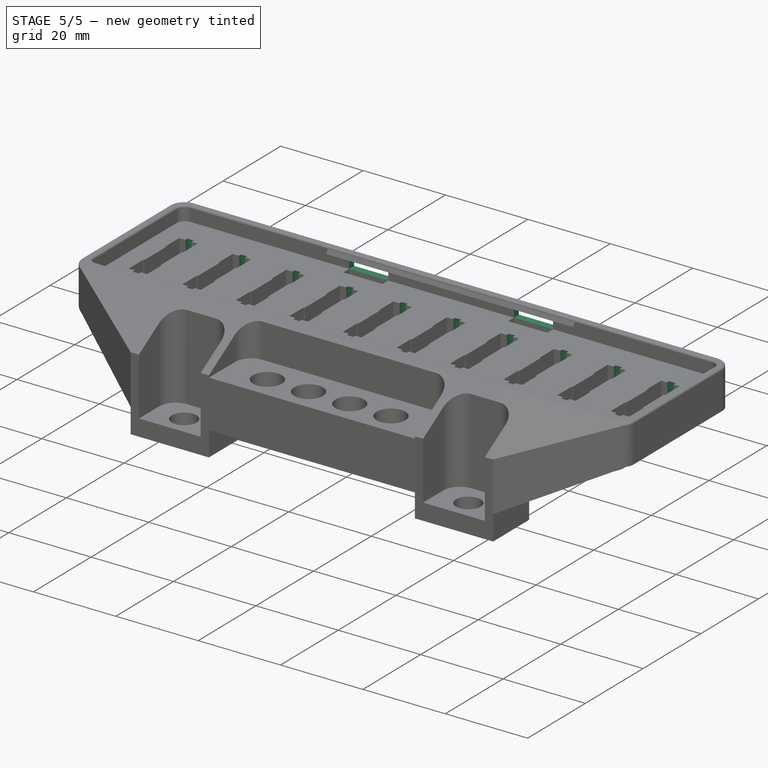
[diagram: stage 5 of 5 — iso view after this stage's code; geometry added in this stage tinted green]
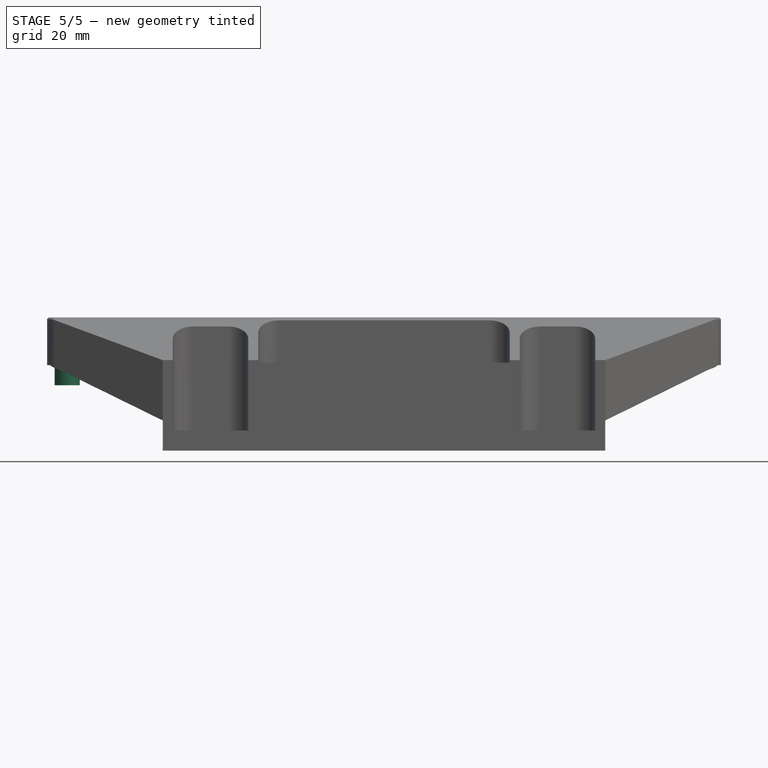
[diagram: stage 5 of 5 — front view after this stage's code; geometry added in this stage tinted green]
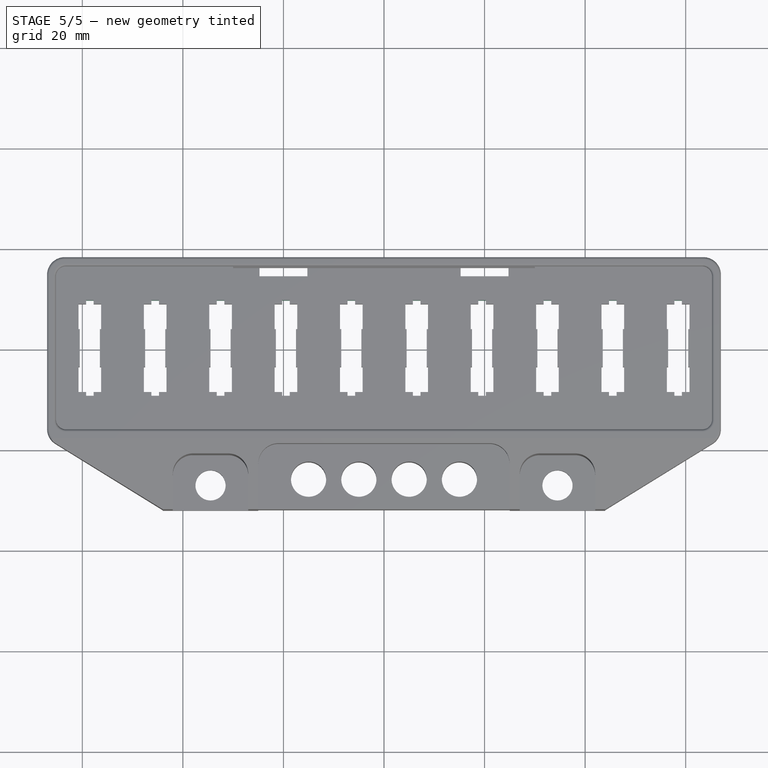
[diagram: stage 5 of 5 — top view after this stage's code; geometry added in this stage tinted green]
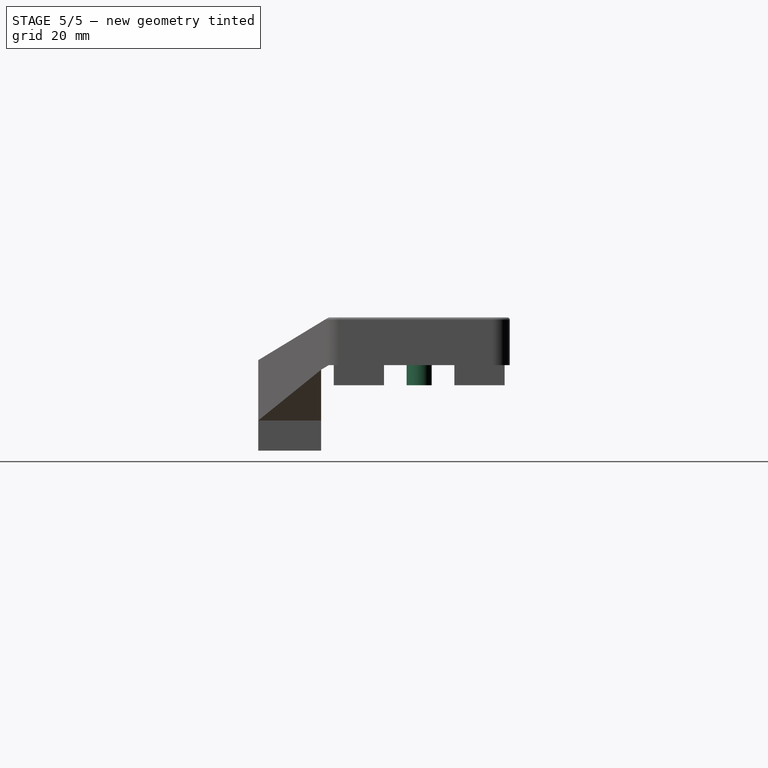
[diagram: stage 5 of 5 — right view after this stage's code; geometry added in this stage tinted green]
FEATURE [Sketcher::SketchObject] Sketch019
  ArcFitTolerance = 0
  AttachmentSupport = -> [Pocket010]
  FullyConstrained = true
  MakeInternals = false
  MapMode = 5
  Placement = pos=(-1.9e-15,1.9e-15,17) rot=(1,0,0;3.14159rad)
  sketch-geometry (16):
    g0: Circle CenterX=-63 CenterY=0 CenterZ=0 NormalX=0 NormalY=0 NormalZ=1 AngleXU=0 Radius=2.5
    g1: Circle CenterX=-54 CenterY=0 CenterZ=0 NormalX=0 NormalY=0 NormalZ=1 AngleXU=0 Radius=2.5
    g2: Circle CenterX=-37 CenterY=0 CenterZ=0 NormalX=0 NormalY=0 NormalZ=1 AngleXU=0 Radius=2.5
    g3: Circle CenterX=-28 CenterY=0 CenterZ=0 NormalX=0 NormalY=0 NormalZ=1 AngleXU=0 Radius=2.5
    g4: Circle CenterX=2 CenterY=0 CenterZ=0 NormalX=0 NormalY=0 NormalZ=1 AngleXU=0 Radius=2.5
    g5: Circle CenterX=11 CenterY=0 CenterZ=0 NormalX=0 NormalY=0 NormalZ=1 AngleXU=0 Radius=2.5
    g6: Circle CenterX=50 CenterY=0 CenterZ=0 NormalX=0 NormalY=0 NormalZ=1 AngleXU=0 Radius=2.5
    g7: Circle CenterX=41 CenterY=0 CenterZ=0 NormalX=0 NormalY=0 NormalZ=1 AngleXU=0 Radius=2.5
    g8: Circle CenterX=-63 CenterY=0 CenterZ=0 NormalX=0 NormalY=0 NormalZ=1 AngleXU=0 Radius=1.35
    g9: Circle CenterX=-54 CenterY=0 CenterZ=0 NormalX=0 NormalY=0 NormalZ=1 AngleXU=0 Radius=1.35
    g10: Circle CenterX=-37 CenterY=0 CenterZ=0 NormalX=0 NormalY=0 NormalZ=1 AngleXU=0 Radius=1.35
    g11: Circle CenterX=-28 CenterY=0 CenterZ=0 NormalX=0 NormalY=0 NormalZ=1 AngleXU=0 Radius=1.35
    g12: Circle CenterX=2 CenterY=0 CenterZ=0 NormalX=0 NormalY=0 NormalZ=1 AngleXU=0 Radius=1.35
    g13: Circle CenterX=11 CenterY=0 CenterZ=0 NormalX=0 NormalY=0 NormalZ=1 AngleXU=0 Radius=1.35
    g14: Circle CenterX=41 CenterY=0 CenterZ=0 NormalX=0 NormalY=0 NormalZ=1 AngleXU=0 Radius=1.35
    g15: Circle CenterX=50 CenterY=0 CenterZ=0 NormalX=0 NormalY=0 NormalZ=1 AngleXU=0 Radius=1.35
  constraints (40):
    c: PointOnObject(g0,g-1)
    c: PointOnObject(g1,g-1)
    c: PointOnObject(g2,g-1)
    c: PointOnObject(g3,g-1)
    c: PointOnObject(g4,g-1)
    c: PointOnObject(g5,g-1)
    c: PointOnObject(g6,g-1)
    c: PointOnObject(g7,g-1)
    c: Diameter(g0) = 5
    c: Equal(g0,g1)
    c: Equal(g1,g2)
    c: Equal(g2,g3)
    c: Equal(g3,g4)
    c: Equal(g4,g5)
    c: Equal(g5,g7)
    c: Equal(g7,g6)
    c: DistanceX(g0,g-1) = 63
    c: DistanceX(g1,g-1) = 54
    c: DistanceX(g2,g-1) = 37
    c: DistanceX(g3,g-1) = 28
    c: DistanceX(g-1,g4) = 2
    c: DistanceX(g-1,g5) = 11
    c: DistanceX(g-1,g7) = 41
    c: DistanceX(g-1,g6) = 50
    c: Coincident(g8,g0)
    c: Coincident(g9,g1)
    c: Coincident(g10,g2)
    c: Coincident(g11,g3)
    c: Coincident(g12,g4)
    c: Coincident(g13,g5)
    c: Coincident(g14,g7)
    c: Coincident(g15,g6)
    c: Diameter(g8) = 2.7
    c: Equal(g8,g9)
    c: Equal(g9,g10)
    c: Equal(g10,g11)
    c: Equal(g11,g12)
    c: Equal(g12,g13)
    c: Equal(g13,g14)
    c: Equal(g14,g15)
FEATURE [PartDesign::Pad] Pad002  label="HeatInserts"
  BaseFeature = -> Pad001
  Direction = (0,0,-1)
  Length = 4
  Length2 = 10
  Profile = -> Sketch019
  ReferenceAxis = -> Sketch019 [N_Axis]
  Suppressed = false
  Type = 0
FEATURE [Sketcher::SketchObject] Sketch020
  ArcFitTolerance = 0
  AttachmentSupport = -> [Pad002]
  FullyConstrained = false
  MakeInternals = false
  MapMode = 5
  Placement = pos=(-1.9e-15,1.9e-15,17) rot=(1,0,0;3.14159rad)
  sketch-geometry (50):
    g0: LineSegment StartX=59.25 StartY=9.5 StartZ=0 EndX=57.75 EndY=9.5 EndZ=0
    g1: LineSegment StartX=57.75 StartY=9.5 StartZ=0 EndX=57.75 EndY=-9.5 EndZ=0
    g2: LineSegment StartX=57.75 StartY=-9.5 StartZ=0 EndX=59.25 EndY=-9.5 EndZ=0
    g3: LineSegment StartX=59.25 StartY=-9.5 StartZ=0 EndX=59.25 EndY=9.5 EndZ=0
    g4: GeomPoint [constr] X=58.5 Y=0 Z=0
    g5: GeomPoint [constr] X=45.5 Y=0 Z=0
    g6: LineSegment StartX=46.25 StartY=9.5 StartZ=0 EndX=44.75 EndY=9.5 EndZ=0
    g7: LineSegment StartX=44.75 StartY=9.5 StartZ=0 EndX=44.75 EndY=-9.5 EndZ=0
    g8: LineSegment StartX=44.75 StartY=-9.5 StartZ=0 EndX=46.25 EndY=-9.5 EndZ=0
    g9: LineSegment StartX=46.25 StartY=-9.5 StartZ=0 EndX=46.25 EndY=9.5 EndZ=0
    g10: GeomPoint [constr] X=32.5 Y=0 Z=0
    g11: LineSegment StartX=33.25 StartY=9.5 StartZ=0 EndX=31.75 EndY=9.5 EndZ=0
    g12: LineSegment StartX=31.75 StartY=9.5 StartZ=0 EndX=31.75 EndY=-9.5 EndZ=0
    g13: LineSegment StartX=31.75 StartY=-9.5 StartZ=0 EndX=33.25 EndY=-9.5 EndZ=0
    g14: LineSegment StartX=33.25 StartY=-9.5 StartZ=0 EndX=33.25 EndY=9.5 EndZ=0
    g15: GeomPoint [constr] X=19.5 Y=0 Z=0
    g16: LineSegment StartX=20.25 StartY=9.5 StartZ=0 EndX=18.75 EndY=9.5 EndZ=0
    g17: LineSegment StartX=18.75 StartY=9.5 StartZ=0 EndX=18.75 EndY=-9.5 EndZ=0
    g18: LineSegment StartX=18.75 StartY=-9.5 StartZ=0 EndX=20.25 EndY=-9.5 EndZ=0
    g19: LineSegment StartX=20.25 StartY=-9.5 StartZ=0 EndX=20.25 EndY=9.5 EndZ=0
    g20: GeomPoint [constr] X=6.5 Y=0 Z=0
    g21: LineSegment StartX=7.25 StartY=9.5 StartZ=0 EndX=5.75 EndY=9.5 EndZ=0
    g22: LineSegment StartX=5.75 StartY=9.5 StartZ=0 EndX=5.75 EndY=-9.5 EndZ=0
    g23: LineSegment StartX=5.75 StartY=-9.5 StartZ=0 EndX=7.25 EndY=-9.5 EndZ=0
    g24: LineSegment StartX=7.25 StartY=-9.5 StartZ=0 EndX=7.25 EndY=9.5 EndZ=0
    g25: GeomPoint [constr] X=-6.5 Y=0 Z=0
    g26: LineSegment StartX=-5.75 StartY=9.5 StartZ=0 EndX=-7.25 EndY=9.5 EndZ=0
    g27: LineSegment StartX=-7.25 StartY=9.5 StartZ=0 EndX=-7.25 EndY=-9.5 EndZ=0
    g28: LineSegment StartX=-7.25 StartY=-9.5 StartZ=0 EndX=-5.75 EndY=-9.5 EndZ=0
    g29: LineSegment StartX=-5.75 StartY=-9.5 StartZ=0 EndX=-5.75 EndY=9.5 EndZ=0
    g30: GeomPoint [constr] X=-19.5 Y=0 Z=0
    g31: LineSegment StartX=-18.75 StartY=9.5 StartZ=0 EndX=-20.25 EndY=9.5 EndZ=0
    g32: LineSegment StartX=-20.25 StartY=9.5 StartZ=0 EndX=-20.25 EndY=-9.5 EndZ=0
    g33: LineSegment StartX=-20.25 StartY=-9.5 StartZ=0 EndX=-18.75 EndY=-9.5 EndZ=0
    g34: LineSegment StartX=-18.75 StartY=-9.5 StartZ=0 EndX=-18.75 EndY=9.5 EndZ=0
    g35: GeomPoint [constr] X=-32.5 Y=0 Z=0
    g36: LineSegment StartX=-31.75 StartY=9.5 StartZ=0 EndX=-33.25 EndY=9.5 EndZ=0
    g37: LineSegment StartX=-33.25 StartY=9.5 StartZ=0 EndX=-33.25 EndY=-9.5 EndZ=0
    g38: LineSegment StartX=-33.25 StartY=-9.5 StartZ=0 EndX=-31.75 EndY=-9.5 EndZ=0
    g39: LineSegment StartX=-31.75 StartY=-9.5 StartZ=0 EndX=-31.75 EndY=9.5 EndZ=0
    g40: GeomPoint [constr] X=-45.5 Y=0 Z=0
    g41: LineSegment StartX=-44.75 StartY=9.5 StartZ=0 EndX=-46.25 EndY=9.5 EndZ=0
    g42: LineSegment StartX=-46.25 StartY=9.5 StartZ=0 EndX=-46.25 EndY=-9.5 EndZ=0
    g43: LineSegment StartX=-46.25 StartY=-9.5 StartZ=0 EndX=-44.75 EndY=-9.5 EndZ=0
    g44: LineSegment StartX=-44.75 StartY=-9.5 StartZ=0 EndX=-44.75 EndY=9.5 EndZ=0
    g45: GeomPoint [constr] X=-58.5 Y=0 Z=0
    g46: LineSegment StartX=-57.75 StartY=9.5 StartZ=0 EndX=-59.25 EndY=9.5 EndZ=0
    g47: LineSegment StartX=-59.25 StartY=9.5 StartZ=0 EndX=-59.25 EndY=-9.5 EndZ=0
    g48: LineSegment StartX=-59.25 StartY=-9.5 StartZ=0 EndX=-57.75 EndY=-9.5 EndZ=0
    g49: LineSegment StartX=-57.75 StartY=-9.5 StartZ=0 EndX=-57.75 EndY=9.5 EndZ=0
  constraints (76):
    c: Coincident(g0,g1)
    c: Coincident(g1,g2)
    c: Coincident(g2,g3)
    c: Coincident(g3,g0)
    c: Horizontal(g0)
    c: Horizontal(g2)
    c: Vertical(g1)
    c: Vertical(g3)
    c: Symmetric(g2,g0,g4)
    c: PointOnObject(g4,g-1)
    c: DistanceX(g0,g0) = 1.5
    c: DistanceY(g3,g3) = 19
    c: DistanceX(g-1,g4) = 58.5
    c: Coincident(g6,g7)
    c: Coincident(g11,g12)
    c: Coincident(g16,g17)
    c: Coincident(g21,g22)
    c: Coincident(g26,g27)
    c: Coincident(g31,g32)
    c: Coincident(g36,g37)
    c: Coincident(g41,g42)
    c: Coincident(g46,g47)
    c: Coincident(g7,g8)
    c: Coincident(g12,g13)
    c: Coincident(g17,g18)
    c: Coincident(g22,g23)
    c: Coincident(g27,g28)
    c: Coincident(g32,g33)
    c: Coincident(g37,g38)
    c: Coincident(g42,g43)
    c: Coincident(g47,g48)
    c: Coincident(g8,g9)
    c: Coincident(g13,g14)
    c: Coincident(g18,g19)
    c: Coincident(g23,g24)
    c: Coincident(g28,g29)
    c: Coincident(g33,g34)
    c: Coincident(g38,g39)
    c: Coincident(g43,g44)
    c: Coincident(g48,g49)
    c: Coincident(g9,g6)
    c: Coincident(g14,g11)
    c: Coincident(g19,g16)
    c: Coincident(g24,g21)
    c: Coincident(g29,g26)
    c: Coincident(g34,g31)
    c: Coincident(g39,g36)
    c: Coincident(g44,g41)
    c: Coincident(g49,g46)
    c: Symmetric(g8,g6,g5)
    c: Symmetric(g13,g11,g10)
    c: Symmetric(g18,g16,g15)
    c: Symmetric(g23,g21,g20)
    c: Symmetric(g28,g26,g25)
    c: Symmetric(g33,g31,g30)
    c: Symmetric(g38,g36,g35)
    c: Symmetric(g43,g41,g40)
    c: Symmetric(g48,g46,g45)
    c: DistanceX(g6,g6) = 1.5
    c: DistanceX(g11,g11) = 1.5
    c: DistanceX(g16,g16) = 1.5
    c: DistanceX(g21,g21) = 1.5
    c: DistanceX(g26,g26) = 1.5
    c: DistanceX(g31,g31) = 1.5
    c: DistanceX(g36,g36) = 1.5
    c: DistanceX(g41,g41) = 1.5
    c: DistanceX(g46,g46) = 1.5
    c: DistanceY(g9,g9) = 19
    c: DistanceY(g14,g14) = 19
    c: DistanceY(g19,g19) = 19
    c: DistanceY(g24,g24) = 19
    c: DistanceY(g29,g29) = 19
    c: DistanceY(g34,g34) = 19
    c: DistanceY(g39,g39) = 19
    c: DistanceY(g44,g44) = 19
    c: DistanceY(g49,g49) = 19
FEATURE [PartDesign::Pocket] Pocket014  label="FuseWings"
  BaseFeature = -> Pad002
  Direction = (0,0,1)
  Length = 5
  Length2 = 5
  Profile = -> Sketch020
  ReferenceAxis = -> Sketch020 [N_Axis]
  Suppressed = false
  Type = 1
FEATURE [Sketcher::SketchObject] Sketch021  label="TopLidIndent"
  ArcFitTolerance = 1e-06
  AttachmentSupport = -> [Pocket014]
  ExternalGeometry = -> [Pocket014]
  FullyConstrained = true
  MakeInternals = false
  MapMode = 5
  Placement = pos=(0,16.25,0) rot=(1,0,0;1.5708rad)
  sketch-geometry (8):
    g0: LineSegment StartX=-24.75 StartY=23 StartZ=0 EndX=-15.25 EndY=23 EndZ=0
    g1: LineSegment StartX=-15.25 StartY=23 StartZ=0 EndX=-15.25 EndY=25 EndZ=0
    g2: LineSegment StartX=-15.25 StartY=25 StartZ=0 EndX=-24.75 EndY=25 EndZ=0
    g3: LineSegment StartX=-24.75 StartY=25 StartZ=0 EndX=-24.75 EndY=23 EndZ=0
    g4: LineSegment StartX=15.25 StartY=23 StartZ=0 EndX=24.75 EndY=23 EndZ=0
    g5: LineSegment StartX=24.75 StartY=23 StartZ=0 EndX=24.75 EndY=25 EndZ=0
    g6: LineSegment StartX=24.75 StartY=25 StartZ=0 EndX=15.25 EndY=25 EndZ=0
    g7: LineSegment StartX=15.25 StartY=25 StartZ=0 EndX=15.25 EndY=23 EndZ=0
  constraints (22):
    c: Coincident(g0,g1)
    c: Coincident(g1,g2)
    c: Coincident(g2,g3)
    c: Coincident(g3,g0)
    c: Horizontal(g0)
    c: Horizontal(g2)
    c: Vertical(g1)
    c: Vertical(g3)
    c: Coincident(g0,g-3)
    c: Coincident(g4,g5)
    c: Coincident(g5,g6)
    c: Coincident(g6,g7)
    c: Coincident(g7,g4)
    c: Horizontal(g4)
    c: Horizontal(g6)
    c: Vertical(g5)
    c: Vertical(g7)
    c: Coincident(g4,g-4)
    c: Vertical(g1,g-3)
    c: DistanceY(g1,g1) = 2
    c: Equal(g7,g1)
    c: Vertical(g5,g-4)
FEATURE [PartDesign::Pocket] Pocket015  label="TopLidIndentPocket"
  BaseFeature = -> Pocket014
  Direction = (0,1,-2e-16)
  Length = 1.8
  Length2 = 5
  Profile = -> Sketch021
  ReferenceAxis = -> Sketch021 [N_Axis]
  Refine = true
  Suppressed = false
  Type = 0
FEATURE [Sketcher::SketchObject] Sketch022  label="BottomLidIndent"
  ArcFitTolerance = 1e-06
  AttachmentSupport = -> [Pocket015]
  ExternalGeometry = -> [Pocket015]
  FullyConstrained = true
  MakeInternals = false
  MapMode = 5
  Placement = pos=(0,-16.25,0) rot=(0,0.707107,0.707107;3.14159rad)
  sketch-geometry (4):
    g0: LineSegment StartX=-4.75 StartY=23 StartZ=0 EndX=4.75 EndY=23 EndZ=0
    g1: LineSegment StartX=4.75 StartY=23 StartZ=0 EndX=4.75 EndY=25 EndZ=0
    g2: LineSegment StartX=4.75 StartY=25 StartZ=0 EndX=-4.75 EndY=25 EndZ=0
    g3: LineSegment StartX=-4.75 StartY=25 StartZ=0 EndX=-4.75 EndY=23 EndZ=0
  constraints (11):
    c: Coincident(g0,g1)
    c: Coincident(g1,g2)
    c: Coincident(g2,g3)
    c: Coincident(g3,g0)
    c: Horizontal(g0)
    c: Vertical(g1)
    c: Vertical(g3)
    c: PointOnObject(g0,g-3)
    c: DistanceY(g3,g3) = 2
    c: DistanceX(g2,g2) = 9.5
    c: Symmetric(g2,g1,g-2)
FEATURE [PartDesign::Pocket] Pocket016  label="BottomLidIndentPocket"
  BaseFeature = -> Pocket015
  Direction = (0,-1,2e-16)
  Length = 1.6
  Length2 = 5
  Profile = -> Sketch022
  ReferenceAxis = -> Sketch022 [N_Axis]
  Refine = true
  Suppressed = false
  Type = 0
FEATURE [PartDesign::Body] Body001
  AllowCompound = false
  Group = -> [Sketch023,Pad003]
  Origin = -> Origin001
  Tip = -> Pad003
FEATURE [Part::Fuse] Fusion  label="BodyAndLip"
  Base = -> Body
  Tool = -> Body001
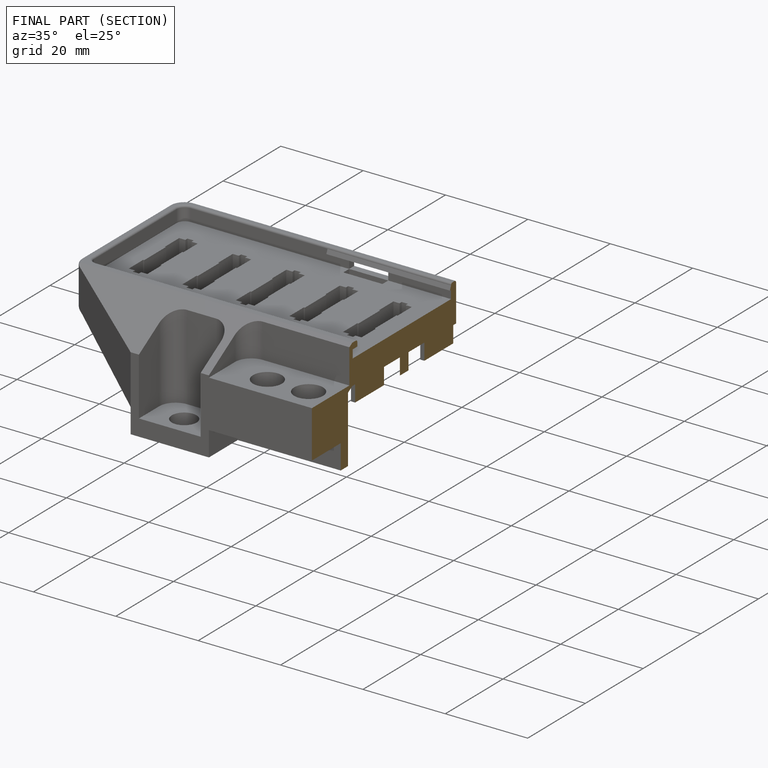
[diagram: finished part — half-section view (interior)]
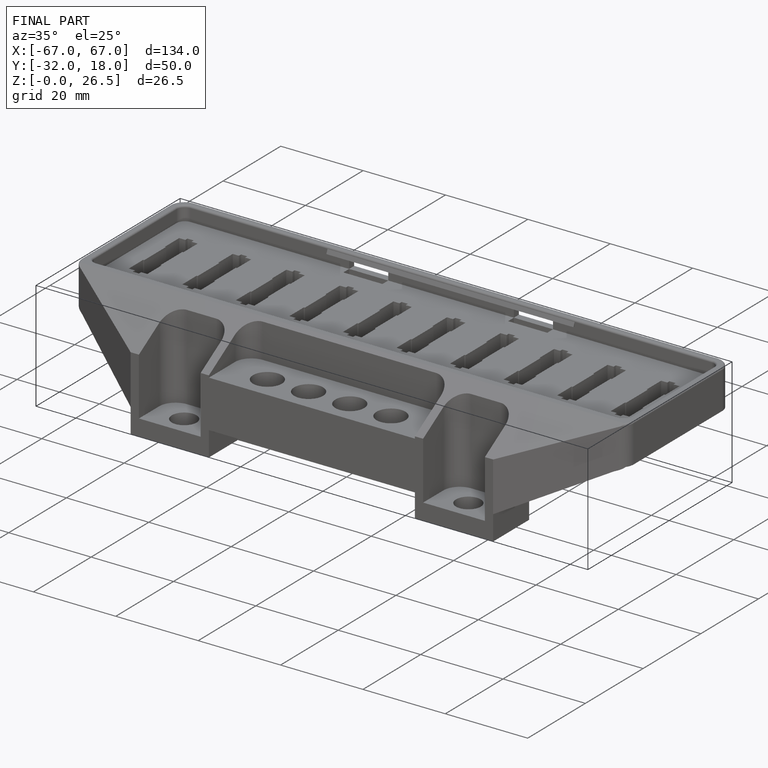
[diagram: finished part — iso view with bounding-box wireframe]
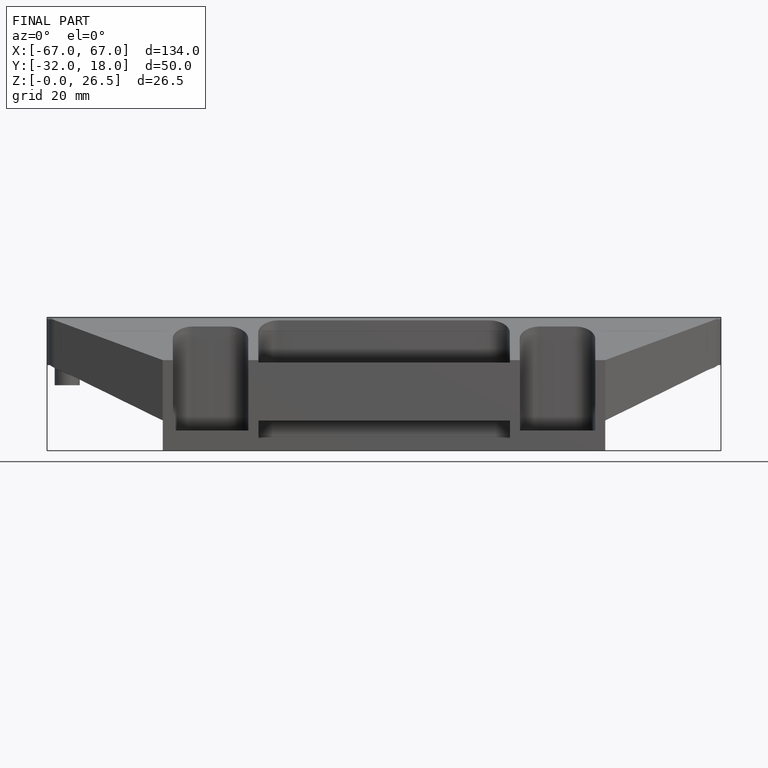
[diagram: finished part — front view with bounding-box wireframe]
